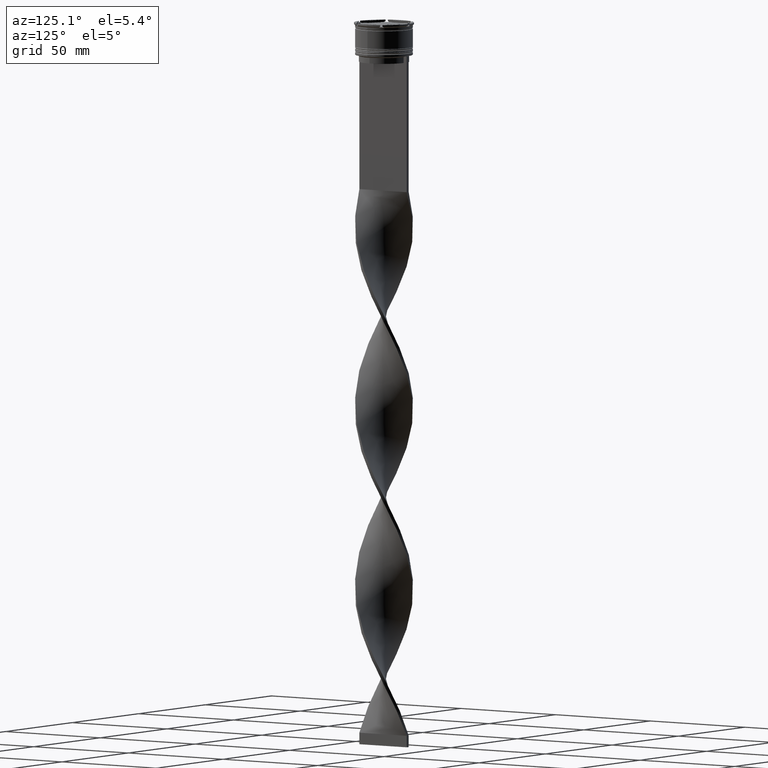
[diagram: clean part render]
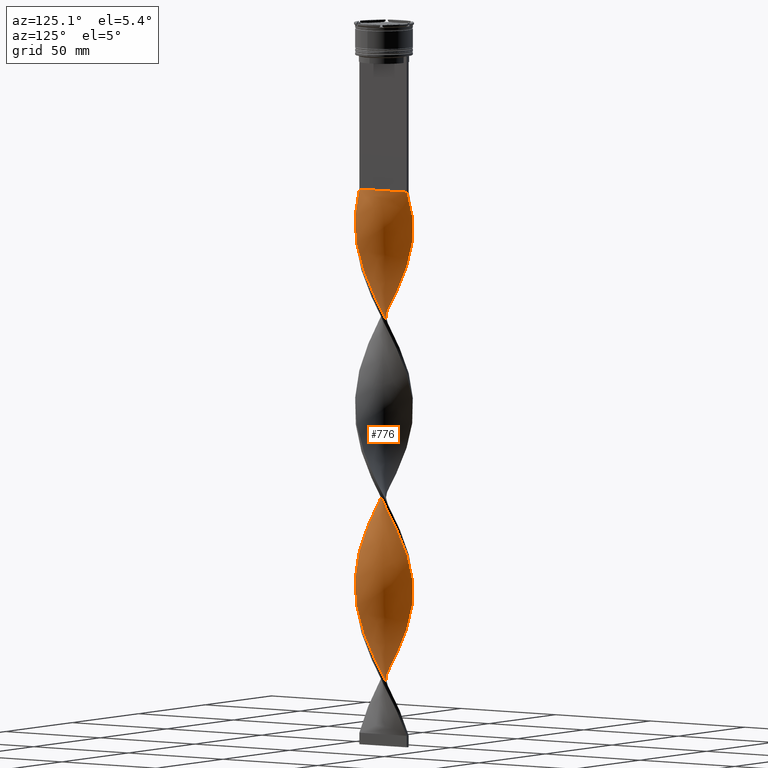
[diagram: same view with one face highlighted and labeled with its STEP entity id]
A machine part, auxiliary view. The second image highlights one B-rep face of the part: STEP entity #776.
In plain terms, the highlighted face is a freeform B-spline surface patch.
Its self-contained STEP definition (entity closure, byte-faithful):
#3 = CARTESIAN_POINT ( 'NONE',  ( -11.47807442715926030, -5.006626353603058632, -124.1333333333333400 ) ) ;
#5 = CARTESIAN_POINT ( 'NONE',  ( 10.79708867754993840, -6.343136139885612756, -179.1999999999999886 ) ) ;
#17 = CARTESIAN_POINT ( 'NONE',  ( 3.658622801590748264, -12.01658309743656083, -78.90000000000001990 ) ) ;
#18 = CARTESIAN_POINT ( 'NONE',  ( 1.733771335307731087, -12.44097371988153711, -232.3000000000000114 ) ) ;
#27 = CARTESIAN_POINT ( 'NONE',  ( 8.308504678941933008, -9.369164850721755755, -171.3333333333333428 ) ) ;
#30 = CARTESIAN_POINT ( 'NONE',  ( -0.7499999999999986677, 12.50000000000000000, -309.0000000000000000 ) ) ;
#43 = CARTESIAN_POINT ( 'NONE',  ( 11.08404438769758293, -5.909970402080499952, -98.56666666666669130 ) ) ;
#44 = CARTESIAN_POINT ( 'NONE',  ( 10.02305835011481605, -7.571135413668909742, -251.9666666666666970 ) ) ;
#49 = CARTESIAN_POINT ( 'NONE',  ( -7.192885447545556588, -10.29787303672002174, -137.9000000000000625 ) ) ;
#51 = CARTESIAN_POINT ( 'NONE',  ( 11.29630431837985505, -5.493386832225676031, -181.1666666666666856 ) ) ;
#66 = CARTESIAN_POINT ( 'NONE',  ( 11.29630431837985682, 5.493386832225668037, -122.1666666666666856 ) ) ;
#71 = CARTESIAN_POINT ( 'NONE',  ( -11.65644370790820794, 4.576004816908208817, -104.4666666666666828 ) ) ;
#73 = CARTESIAN_POINT ( 'NONE',  ( -5.493386832225669814, -11.29630431837985682, -141.8333333333333428 ) ) ;
#87 = CARTESIAN_POINT ( 'NONE',  ( -12.44097371988153711, -1.733771335307734640, -192.9666666666666970 ) ) ;
#93 = CARTESIAN_POINT ( 'NONE',  ( -9.671873490467488566, 7.954078399437126023, -253.9333333333333371 ) ) ;
#95 = CARTESIAN_POINT ( 'NONE',  ( -12.36783393232032680, -2.195557779805334508, -118.2333333333333485 ) ) ;
#111 = VECTOR ( 'NONE', #2568, 1000.000000000000000 ) ;
#113 = CARTESIAN_POINT ( 'NONE',  ( -10.79708867754994017, -6.343136139885609204, -202.8000000000000114 ) ) ;
#114 = CARTESIAN_POINT ( 'NONE',  ( 5.909970402080499063, 11.08404438769758293, -295.2333333333332916 ) ) ;
#120 = CARTESIAN_POINT ( 'NONE',  ( 5.493386832225676919, 11.29630431837985505, -220.5000000000000284 ) ) ;
#122 = CARTESIAN_POINT ( 'NONE',  ( -5.909970402080498175, 11.08404438769758293, -244.0999999999999943 ) ) ;
#135 = CARTESIAN_POINT ( 'NONE',  ( 7.571135413668912406, 10.02305835011481605, -133.9666666666666686 ) ) ;
#140 = CARTESIAN_POINT ( 'NONE',  ( -10.29787303672002174, 7.192885447545556588, -255.9000000000000909 ) ) ;
#142 =( BOUNDED_CURVE ( )  B_SPLINE_CURVE ( 2, ( #1722, #3073, #4491, #302, #2726, #1377, #598, #1310, #3417, #3053, #285, #2330, #4045, #3710, #1330, #1981, #4108, #2395, #1029, #3224, #2475, #1743, #4235, #95, #3203, #2430, #3861, #4150, #3906, #3480, #726, #3815, #3498, #3180, #1836, #73, #3136, #1119, #1464, #1075, #750, #686, #2092, #2859, #2522, #777, #2496, #1052, #2180, #387, #27, #707, #347, #2132, #5, #51, #365, #1787, #414, #1419, #1763, #1394, #2817, #3565, #3155, #1443, #2770, #435, #2114, #3517, #3841, #2453, #2790, #3880, #2838, #4170, #4195, #4214, #1096, #2157, #3544, #1812, #1535, #1926, #3973, #3947, #1236, #122, #3314, #4016, #819, #3272, #1558, #2884, #143, #482, #186, #1514, #503, #2202, #3657, #455, #2227, #3586, #2564, #4351, #4303, #2928, #1862, #3250, #846, #3292, #2907, #1584, #4284, #1907, #2950, #4262, #1887, #164, #2974 ),
 .UNSPECIFIED., .F., .T. ) 
 B_SPLINE_CURVE_WITH_KNOTS ( ( 3, 2, 2, 2, 2, 2, 2, 2, 2, 2, 2, 2, 2, 2, 2, 2, 2, 2, 2, 2, 2, 2, 2, 2, 2, 2, 2, 2, 2, 2, 2, 2, 2, 2, 2, 2, 2, 2, 2, 2, 2, 2, 2, 2, 2, 2, 2, 2, 2, 2, 2, 2, 2, 2, 2, 2, 2, 2, 2, 2, 3 ),
 ( 0.000000000000000000, 0.01250000000000000243, 0.02500000000000000486, 0.03749999999999999861, 0.05000000000000000971, 0.06250000000000000000, 0.07499999999999999722, 0.08749999999999998057, 0.1000000000000000194, 0.1125000000000000028, 0.1250000000000000000, 0.1375000000000000111, 0.1499999999999999944, 0.1625000000000000056, 0.1749999999999999611, 0.1875000000000000000, 0.2000000000000000389, 0.2124999999999999944, 0.2250000000000000056, 0.2374999999999999611, 0.2500000000000000000, 0.2625000000000000111, 0.2750000000000000222, 0.2874999999999999778, 0.2999999999999999889, 0.3125000000000000000, 0.3250000000000000111, 0.3375000000000000777, 0.3499999999999999223, 0.3624999999999999889, 0.3750000000000000000, 0.3875000000000000111, 0.4000000000000000777, 0.4124999999999999223, 0.4249999999999999889, 0.4375000000000000000, 0.4500000000000000111, 0.4625000000000000777, 0.4749999999999999223, 0.4874999999999999889, 0.5000000000000000000, 0.5124999999999999556, 0.5250000000000000222, 0.5374999999999999778, 0.5500000000000000444, 0.5625000000000000000, 0.5749999999999999556, 0.5875000000000000222, 0.5999999999999999778, 0.6125000000000000444, 0.6250000000000000000, 0.6374999999999999556, 0.6500000000000000222, 0.6624999999999999778, 0.6750000000000001554, 0.6875000000000000000, 0.6999999999999998446, 0.7125000000000000222, 0.7249999999999999778, 0.7375000000000001554, 0.7500000000000000000 ),
 .UNSPECIFIED. ) 
 CURVE ( )  GEOMETRIC_REPRESENTATION_ITEM ( )  RATIONAL_B_SPLINE_CURVE ( ( 1.000000000000000000, 0.9969173337331279638, 1.000000000000000000, 0.9969173337331279638, 1.000000000000000000, 0.9969173337331279638, 1.000000000000000000, 0.9969173337331279638, 1.000000000000000000, 0.9969173337331279638, 1.000000000000000000, 0.9969173337331279638, 1.000000000000000000, 0.9969173337331279638, 1.000000000000000000, 0.9969173337331279638, 1.000000000000000000, 0.9969173337331279638, 1.000000000000000000, 0.9969173337331279638, 1.000000000000000000, 0.9969173337331279638, 1.000000000000000000, 0.9969173337331279638, 1.000000000000000000, 0.9969173337331279638, 1.000000000000000000, 0.9969173337331279638, 1.000000000000000000, 0.9969173337331279638, 1.000000000000000000, 0.9969173337331279638, 1.000000000000000000, 0.9969173337331279638, 1.000000000000000000, 0.9969173337331279638, 1.000000000000000000, 0.9969173337331279638, 1.000000000000000000, 0.9969173337331279638, 1.000000000000000000, 0.9969173337331279638, 1.000000000000000000, 0.9969173337331279638, 1.000000000000000000, 0.9969173337331279638, 1.000000000000000000, 0.9969173337331279638, 1.000000000000000000, 0.9969173337331279638, 1.000000000000000000, 0.9969173337331279638, 1.000000000000000000, 0.9969173337331279638, 1.000000000000000000, 0.9969173337331279638, 1.000000000000000000, 0.9969173337331279638, 1.000000000000000000, 0.9969173337331279638, 1.000000000000000000, 0.9969173337331279638, 1.000000000000000000, 0.9969173337331279638, 1.000000000000000000, 0.9969173337331279638, 1.000000000000000000, 0.9969173337331279638, 1.000000000000000000, 0.9969173337331279638, 1.000000000000000000, 0.9969173337331279638, 1.000000000000000000, 0.9969173337331279638, 1.000000000000000000, 0.9969173337331279638, 1.000000000000000000, 0.9969173337331279638, 1.000000000000000000, 0.9969173337331279638, 1.000000000000000000, 0.9969173337331279638, 1.000000000000000000, 0.9969173337331279638, 1.000000000000000000, 0.9969173337331279638, 1.000000000000000000, 0.9969173337331279638, 1.000000000000000000, 0.9969173337331279638, 1.000000000000000000, 0.9969173337331279638, 1.000000000000000000, 0.9969173337331279638, 1.000000000000000000, 0.9969173337331279638, 1.000000000000000000, 0.9969173337331279638, 1.000000000000000000, 0.9969173337331279638, 1.000000000000000000, 0.9969173337331279638, 1.000000000000000000, 0.9969173337331279638, 1.000000000000000000, 0.9969173337331279638, 1.000000000000000000, 0.9969173337331279638, 1.000000000000000000, 0.9969173337331279638, 1.000000000000000000, 0.9969173337331279638, 1.000000000000000000, 0.9969173337331279638, 1.000000000000000000, 0.9969173337331279638, 1.000000000000000000, 0.9969173337331279638, 1.000000000000000000, 0.9969173337331279638, 1.000000000000000000 ) ) 
 REPRESENTATION_ITEM ( '' )  );
#143 = CARTESIAN_POINT ( 'NONE',  ( -10.79708867754993840, 6.343136139885611868, -257.8666666666666742 ) ) ;
#157 = CARTESIAN_POINT ( 'NONE',  ( 6.740552907874705291, 10.55355136890619860, -293.2666666666666515 ) ) ;
#158 = CARTESIAN_POINT ( 'NONE',  ( 7.571135413668911518, 10.02305835011481605, -291.3000000000000682 ) ) ;
#162 = CARTESIAN_POINT ( 'NONE',  ( -11.65644370790820794, 4.576004816908208817, -261.7999999999999545 ) ) ;
#164 = CARTESIAN_POINT ( 'NONE',  ( -1.733771335307732864, -12.44097371988153711, -307.0333333333333030 ) ) ;
#184 = CARTESIAN_POINT ( 'NONE',  ( -9.045873944214958939, 8.715271351328699012, -251.9666666666666970 ) ) ;
#186 = CARTESIAN_POINT ( 'NONE',  ( -11.65644370790820794, 4.576004816908208817, -261.7999999999999545 ) ) ;
#206 = CARTESIAN_POINT ( 'NONE',  ( 12.22877840865904986, 2.696197068449238898, -116.2666666666666657 ) ) ;
#226 = CARTESIAN_POINT ( 'NONE',  ( 3.658622801590748708, -12.01658309743656083, -78.90000000000003411 ) ) ;
#251 = CARTESIAN_POINT ( 'NONE',  ( 8.308504678941934785, 9.369164850721753979, -132.0000000000000000 ) ) ;
#269 = CARTESIAN_POINT ( 'NONE',  ( -0.2337713353077390810, -12.55902628011846822, -228.3666666666666742 ) ) ;
#276 = CARTESIAN_POINT ( 'NONE',  ( -7.954078399437126912, -9.671873490467486789, -293.2666666666666515 ) ) ;
#285 = CARTESIAN_POINT ( 'NONE',  ( -8.308504678941934785, 9.369164850721755755, -92.66666666666667140 ) ) ;
#296 = CARTESIAN_POINT ( 'NONE',  ( 4.576004816908207928, -11.65644370790820794, -80.86666666666667425 ) ) ;
#302 = CARTESIAN_POINT ( 'NONE',  ( -2.195557779805334508, 12.36783393232032502, -78.90000000000001990 ) ) ;
#307 = CARTESIAN_POINT ( 'NONE',  ( -1.214664557556535351, -12.46343010621939307, -226.3999999999999773 ) ) ;
#315 = CARTESIAN_POINT ( 'NONE',  ( -11.87210446662093410, 4.103282305125628859, -181.1666666666667140 ) ) ;
#321 = CARTESIAN_POINT ( 'NONE',  ( -2.195557779805334508, 12.36783393232032502, -78.90000000000003411 ) ) ;
#340 = CARTESIAN_POINT ( 'NONE',  ( -9.369164850721753979, 8.308504678941934785, -171.3333333333333428 ) ) ;
#347 = CARTESIAN_POINT ( 'NONE',  ( 9.671873490467486789, -7.954078399437126912, -175.2666666666666799 ) ) ;
#358 = CARTESIAN_POINT ( 'NONE',  ( 1.733771335307731087, -12.44097371988153711, -74.96666666666668277 ) ) ;
#359 = CARTESIAN_POINT ( 'NONE',  ( -9.045873944214957163, -8.715271351328702565, -208.7000000000000171 ) ) ;
#363 = CARTESIAN_POINT ( 'NONE',  ( -9.369164850721755755, -8.308504678941933008, -132.0000000000000000 ) ) ;
#365 = CARTESIAN_POINT ( 'NONE',  ( 11.65644370790820794, -4.576004816908210593, -183.1333333333333258 ) ) ;
#378 = CARTESIAN_POINT ( 'NONE',  ( 0.7500000000000002220, -12.50000000000000000, -230.3333333333333428 ) ) ;
#384 = CARTESIAN_POINT ( 'NONE',  ( -7.571135413668909742, 10.02305835011481605, -90.70000000000001705 ) ) ;
#387 = CARTESIAN_POINT ( 'NONE',  ( 7.571135413668909742, -10.02305835011481783, -169.3666666666667027 ) ) ;
#392 = B_SPLINE_CURVE_WITH_KNOTS ( 'NONE', 3,
 ( #2754, #2478, #4135, #30 ),
 .UNSPECIFIED., .F., .F.,
 ( 4, 4 ),
 ( 0.000000000000000000, 1.000000000000000000 ),
 .UNSPECIFIED. ) ;
#406 = CARTESIAN_POINT ( 'NONE',  ( -2.696197068449238010, 12.22877840865904986, -155.6000000000000227 ) ) ;
#407 = CARTESIAN_POINT ( 'NONE',  ( 4.576004816908207928, -11.65644370790820794, -238.1999999999999886 ) ) ;
#412 = CARTESIAN_POINT ( 'NONE',  ( 0.7500000000000002220, 12.50000000000000000, -73.00000000000001421 ) ) ;
#414 = CARTESIAN_POINT ( 'NONE',  ( 12.22877840865904808, -2.696197068449241119, -187.0666666666666629 ) ) ;
#428 = CARTESIAN_POINT ( 'NONE',  ( 3.149420042465479241, 12.11996919947063134, -143.7999999999999829 ) ) ;
#433 = CARTESIAN_POINT ( 'NONE',  ( 12.22877840865904808, -2.696197068449241119, -187.0666666666666629 ) ) ;
#435 = CARTESIAN_POINT ( 'NONE',  ( 11.08404438769758649, 5.909970402080491958, -204.7666666666666799 ) ) ;
#436 = ORIENTED_EDGE ( 'NONE', *, *, #2326, .F. ) ;
#448 = CARTESIAN_POINT ( 'NONE',  ( -12.46343010621939307, 1.214664557556534463, -187.0666666666666629 ) ) ;
#453 = CARTESIAN_POINT ( 'NONE',  ( 11.65644370790820794, -4.576004816908210593, -183.1333333333333258 ) ) ;
#455 = CARTESIAN_POINT ( 'NONE',  ( -12.55902628011846645, -0.2337713353077295608, -271.6333333333332689 ) ) ;
#472 = CARTESIAN_POINT ( 'NONE',  ( 5.006626353603060409, 11.47807442715925852, -139.8666666666666742 ) ) ;
#480 = CARTESIAN_POINT ( 'NONE',  ( 6.740552907874702626, -10.55355136890619860, -167.4000000000000057 ) ) ;
#482 = CARTESIAN_POINT ( 'NONE',  ( -11.29630431837985682, 5.493386832225669814, -259.8333333333334281 ) ) ;
#495 = CARTESIAN_POINT ( 'NONE',  ( -10.55355136890619860, 6.740552907874705291, -175.2666666666666799 ) ) ;
#496 = CARTESIAN_POINT ( 'NONE',  ( 2.195557779805335397, 12.36783393232032502, -303.0999999999999659 ) ) ;
#501 = CARTESIAN_POINT ( 'NONE',  ( 3.658622801590746043, 12.01658309743656261, -224.4333333333333655 ) ) ;
#503 = CARTESIAN_POINT ( 'NONE',  ( -12.22877840865904986, 2.696197068449240231, -265.7333333333333485 ) ) ;
#512 = VERTEX_POINT ( 'NONE', #2684 ) ;
#516 = CARTESIAN_POINT ( 'NONE',  ( 3.149420042465479241, 12.11996919947063134, -301.1333333333333258 ) ) ;
#518 = CARTESIAN_POINT ( 'NONE',  ( -0.2337713353077304212, 12.55902628011846645, -232.3000000000000114 ) ) ;
#544 = CARTESIAN_POINT ( 'NONE',  ( 1.214664557556534019, 12.46343010621939307, -147.7333333333333201 ) ) ;
#567 = CARTESIAN_POINT ( 'NONE',  ( 3.149420042465479241, 12.11996919947063134, -143.7999999999999829 ) ) ;
#590 = CARTESIAN_POINT ( 'NONE',  ( 9.671873490467490342, 7.954078399437124247, -128.0666666666666629 ) ) ;
#598 = CARTESIAN_POINT ( 'NONE',  ( -5.006626353603058632, 11.47807442715926030, -84.80000000000001137 ) ) ;
#603 = CARTESIAN_POINT ( 'NONE',  ( 0.7500000000000002220, -12.50000000000000000, -230.3333333333333428 ) ) ;
#612 = CARTESIAN_POINT ( 'NONE',  ( -0.7499999999999986677, 12.50000000000000000, -309.0000000000000000 ) ) ;
#613 = CARTESIAN_POINT ( 'NONE',  ( -12.36783393232032680, -2.195557779805334508, -275.5666666666666060 ) ) ;
#637 = CARTESIAN_POINT ( 'NONE',  ( 12.50000000000000000, 0.7499999999999994449, -112.3333333333333428 ) ) ;
#650 = CARTESIAN_POINT ( 'NONE',  ( 11.87210446662093588, -4.103282305125623530, -259.8333333333334281 ) ) ;
#656 = CARTESIAN_POINT ( 'NONE',  ( -10.55355136890619860, 6.740552907874705291, -175.2666666666666799 ) ) ;
#678 = CARTESIAN_POINT ( 'NONE',  ( -12.11996919947063134, 3.149420042465479241, -183.1333333333333258 ) ) ;
#684 = CARTESIAN_POINT ( 'NONE',  ( -12.46343010621939484, -1.214664557556531577, -116.2666666666666657 ) ) ;
#686 = CARTESIAN_POINT ( 'NONE',  ( 0.2337713353077288947, -12.55902628011846645, -153.6333333333333826 ) ) ;
#701 = CARTESIAN_POINT ( 'NONE',  ( -11.65644370790820972, -4.576004816908206152, -198.8666666666666742 ) ) ;
#707 = CARTESIAN_POINT ( 'NONE',  ( 9.045873944214955387, -8.715271351328706118, -173.3000000000000114 ) ) ;
#718 = CARTESIAN_POINT ( 'NONE',  ( 8.715271351328699012, -9.045873944214958939, -90.70000000000001705 ) ) ;
#720 = CARTESIAN_POINT ( 'NONE',  ( 12.22877840865904986, 2.696197068449238898, -273.5999999999999659 ) ) ;
#726 = CARTESIAN_POINT ( 'NONE',  ( -9.369164850721755755, -8.308504678941933008, -132.0000000000000000 ) ) ;
#740 = CARTESIAN_POINT ( 'NONE',  ( 1.214664557556534019, 12.46343010621939307, -147.7333333333333201 ) ) ;
#741 = CARTESIAN_POINT ( 'NONE',  ( 11.29630431837985682, 5.493386832225668037, -279.4999999999999432 ) ) ;
#750 = CARTESIAN_POINT ( 'NONE',  ( -0.7500000000000017764, -12.50000000000000000, -151.6666666666666856 ) ) ;
#768 = CARTESIAN_POINT ( 'NONE',  ( -11.47807442715925852, 5.006626353603060409, -179.1999999999999886 ) ) ;
#774 = CARTESIAN_POINT ( 'NONE',  ( 0.2337713353077288947, -12.55902628011846645, -153.6333333333333826 ) ) ;
#776 = ADVANCED_FACE ( 'NONE', ( #1375 ), #1226, .T. ) ;
#777 = CARTESIAN_POINT ( 'NONE',  ( 4.103282305125619978, -11.87210446662093766, -161.5000000000000000 ) ) ;
#790 = CARTESIAN_POINT ( 'NONE',  ( 4.103282305125623530, 11.87210446662093588, -141.8333333333333428 ) ) ;
#795 = CARTESIAN_POINT ( 'NONE',  ( 6.343136139885613645, 10.79708867754993840, -218.5333333333333314 ) ) ;
#812 = CARTESIAN_POINT ( 'NONE',  ( -6.740552907874707067, -10.55355136890619860, -214.5999999999999943 ) ) ;
#817 = CARTESIAN_POINT ( 'NONE',  ( 12.46343010621939484, 1.214664557556529800, -194.9333333333333371 ) ) ;
#819 = CARTESIAN_POINT ( 'NONE',  ( -8.308504678941934785, 9.369164850721755755, -250.0000000000000000 ) ) ;
#837 = CARTESIAN_POINT ( 'NONE',  ( 12.22877840865904986, 2.696197068449238898, -116.2666666666666657 ) ) ;
#844 = CARTESIAN_POINT ( 'NONE',  ( -0.7500000000000017764, -12.50000000000000000, -151.6666666666666856 ) ) ;
#846 = CARTESIAN_POINT ( 'NONE',  ( -9.369164850721755755, -8.308504678941933008, -289.3333333333333144 ) ) ;
#860 = CARTESIAN_POINT ( 'NONE',  ( -5.006626353603061297, -11.47807442715925852, -218.5333333333333314 ) ) ;
#866 = CARTESIAN_POINT ( 'NONE',  ( 11.87210446662093410, 4.103282305125625307, -200.8333333333333428 ) ) ;
#885 = CARTESIAN_POINT ( 'NONE',  ( 10.29787303672002530, 7.192885447545554811, -126.1000000000000369 ) ) ;
#913 = CARTESIAN_POINT ( 'NONE',  ( -4.576004816908207040, 11.65644370790820972, -159.5333333333333314 ) ) ;
#936 = CARTESIAN_POINT ( 'NONE',  ( -12.46343010621939484, -1.214664557556531577, -273.5999999999999659 ) ) ;
#957 = CARTESIAN_POINT ( 'NONE',  ( -2.696197068449238010, 12.22877840865904986, -155.6000000000000227 ) ) ;
#980 = CARTESIAN_POINT ( 'NONE',  ( 11.47807442715925852, -5.006626353603059520, -100.5333333333333314 ) ) ;
#996 = CARTESIAN_POINT ( 'NONE',  ( 7.954078399437126023, -9.671873490467488566, -246.0666666666666629 ) ) ;
#1002 = CARTESIAN_POINT ( 'NONE',  ( 9.671873490467490342, 7.954078399437124247, -285.3999999999999773 ) ) ;
#1015 = CARTESIAN_POINT ( 'NONE',  ( 10.02305835011481605, -7.571135413668910630, -251.9666666666666686 ) ) ;
#1021 = CARTESIAN_POINT ( 'NONE',  ( -5.493386832225668037, 11.29630431837985860, -161.5000000000000000 ) ) ;
#1026 = CARTESIAN_POINT ( 'NONE',  ( -9.045873944214958939, 8.715271351328699012, -94.63333333333335418 ) ) ;
#1029 = CARTESIAN_POINT ( 'NONE',  ( -12.22877840865904986, 2.696197068449240231, -108.3999999999999915 ) ) ;
#1044 = CARTESIAN_POINT ( 'NONE',  ( 5.493386832225668925, -11.29630431837985682, -240.1666666666667140 ) ) ;
#1050 = CARTESIAN_POINT ( 'NONE',  ( -9.671873490467488566, 7.954078399437126023, -96.60000000000000853 ) ) ;
#1052 = CARTESIAN_POINT ( 'NONE',  ( 5.909970402080496399, -11.08404438769758293, -165.4333333333333371 ) ) ;
#1069 = CARTESIAN_POINT ( 'NONE',  ( 12.11996919947063134, -3.149420042465478353, -261.7999999999999545 ) ) ;
#1073 = CARTESIAN_POINT ( 'NONE',  ( -12.55902628011846645, -0.2337713353077295608, -114.3000000000000398 ) ) ;
#1075 = CARTESIAN_POINT ( 'NONE',  ( -1.733771335307732864, -12.44097371988153711, -149.7000000000000171 ) ) ;
#1087 = CARTESIAN_POINT ( 'NONE',  ( 10.29787303672002352, 7.192885447545553923, -126.1000000000000227 ) ) ;
#1089 = CARTESIAN_POINT ( 'NONE',  ( -6.343136139885609204, 10.79708867754994017, -163.4666666666666401 ) ) ;
#1096 = CARTESIAN_POINT ( 'NONE',  ( 2.696197068449242007, 12.22877840865904808, -226.3999999999999773 ) ) ;
#1110 = CARTESIAN_POINT ( 'NONE',  ( 2.195557779805335841, 12.36783393232032502, -145.7666666666666515 ) ) ;
#1116 = CARTESIAN_POINT ( 'NONE',  ( -0.2337713353077304212, 12.55902628011846645, -74.96666666666668277 ) ) ;
#1119 = CARTESIAN_POINT ( 'NONE',  ( -3.658622801590750040, -12.01658309743656083, -145.7666666666666515 ) ) ;
#1135 = CARTESIAN_POINT ( 'NONE',  ( 12.11996919947063134, -3.149420042465478353, -104.4666666666666828 ) ) ;
#1141 = CARTESIAN_POINT ( 'NONE',  ( -12.44097371988153711, 1.733771335307731976, -267.6999999999999318 ) ) ;
#1157 = CARTESIAN_POINT ( 'NONE',  ( 12.44097371988153711, 1.733771335307730199, -114.3000000000000256 ) ) ;
#1158 = CARTESIAN_POINT ( 'NONE',  ( 0.2337713353077321421, 12.55902628011846645, -307.0333333333333030 ) ) ;
#1162 = CARTESIAN_POINT ( 'NONE',  ( -12.50000000000000000, 0.7500000000000009992, -269.6666666666666856 ) ) ;
#1177 = CARTESIAN_POINT ( 'NONE',  ( 12.01658309743656261, 3.658622801590747819, -118.2333333333333485 ) ) ;
#1183 = CARTESIAN_POINT ( 'NONE',  ( 12.44097371988153533, -1.733771335307738859, -189.0333333333333314 ) ) ;
#1191 = LINE ( 'NONE', #3912, #111 ) ;
#1205 = CARTESIAN_POINT ( 'NONE',  ( 12.50000000000000000, 0.7499999999999994449, -269.6666666666666856 ) ) ;
#1212 = CARTESIAN_POINT ( 'NONE',  ( 3.149420042465475689, -12.11996919947063311, -159.5333333333333314 ) ) ;
#1226 =( BOUNDED_SURFACE ( )  B_SPLINE_SURFACE ( 1, 2, ( 
 ( #412, #1116, #1810, #321, #1761, #2065, #3201, #4148, #3115, #384, #2473, #1026, #1050, #1417, #2428, #3134, #71, #4193, #4489, #3812, #3839, #1073, #684, #2090, #1784, #3478, #3, #2787, #2112, #1462, #363, #2130, #3515, #49, #1441, #2836, #2857, #4233, #2541, #2926, #844, #774, #4281, #4301, #1212, #1859, #1582, #3248, #480, #3584, #2948, #1532, #3995, #1234, #2972, #2224, #453, #1512, #433, #1183, #3925, #2611, #817, #1885, #3904, #866, #3634, #4328, #3609, #1834, #2271, #2251, #2585, #3971, #795, #120, #3655, #501, #1905, #2200, #2562, #518, #3289, #3945, #2882, #1924, #4349, #3311, #2178, #3270, #3563, #184, #93, #140, #3222, #2905, #162, #1485, #4260, #1141, #1162, #1556, #936, #613, #1302, #2697, #1668, #2630, #1620, #1995, #1322, #3085, #276, #4370, #3357, #2386, #3015, #4390, #2717, #2320, #1950 ),
 ( #3427, #2020, #2993, #226, #296, #3337, #4014, #3064, #2677, #4435, #1278, #3381, #4099, #4457, #980, #1252, #4058, #3770, #2341, #3722, #637, #3701, #206, #3744, #2650, #1601, #2041, #885, #590, #1691, #251, #3043, #2291, #3678, #1972, #1646, #567, #4415, #544, #2361, #4078, #4033, #957, #3408, #913, #1021, #1089, #3834, #3197, #2405, #340, #3492, #656, #2061, #2469, #315, #678, #3447, #2423, #4208, #4163, #4503, #1715, #3110, #701, #3148, #4485, #1779, #1370, #359, #2809, #2742, #1737, #1756, #3172, #3808, #3534, #2084, #2445, #3475, #378, #18, #1437, #1346, #407, #1044, #3129, #1388, #3788, #1410, #2763, #44, #2782, #2107, #4124, #2832, #1069, #2489, #4188, #4143, #3873, #3854, #720, #2125, #3511, #741, #2148, #1806, #1002, #1480, #3242, #158, #2580, #114, #3559, #1551, #516, #496, #2852, #1158, #1458 ) ),
 .UNSPECIFIED., .F., .F., .F. ) 
 B_SPLINE_SURFACE_WITH_KNOTS ( ( 2, 2 ),
 ( 3, 2, 2, 2, 2, 2, 2, 2, 2, 2, 2, 2, 2, 2, 2, 2, 2, 2, 2, 2, 2, 2, 2, 2, 2, 2, 2, 2, 2, 2, 2, 2, 2, 2, 2, 2, 2, 2, 2, 2, 2, 2, 2, 2, 2, 2, 2, 2, 2, 2, 2, 2, 2, 2, 2, 2, 2, 2, 2, 2, 3 ),
 ( 0.000000000000000000, 1.000000000000000000 ),
 ( 0.000000000000000000, 0.01250000000000000069, 0.02500000000000000139, 0.03749999999999999861, 0.05000000000000000278, 0.06250000000000000000, 0.07499999999999999722, 0.08749999999999999445, 0.1000000000000000056, 0.1125000000000000028, 0.1250000000000000000, 0.1375000000000000111, 0.1499999999999999944, 0.1625000000000000056, 0.1749999999999999889, 0.1875000000000000000, 0.2000000000000000111, 0.2124999999999999944, 0.2250000000000000056, 0.2374999999999999889, 0.2500000000000000000, 0.2625000000000000111, 0.2750000000000000222, 0.2874999999999999778, 0.2999999999999999889, 0.3125000000000000000, 0.3250000000000000111, 0.3375000000000000222, 0.3499999999999999778, 0.3624999999999999889, 0.3750000000000000000, 0.3875000000000000111, 0.4000000000000000222, 0.4124999999999999778, 0.4249999999999999889, 0.4375000000000000000, 0.4500000000000000111, 0.4625000000000000222, 0.4749999999999999778, 0.4874999999999999889, 0.5000000000000000000, 0.5124999999999999556, 0.5250000000000000222, 0.5374999999999999778, 0.5500000000000000444, 0.5625000000000000000, 0.5749999999999999556, 0.5875000000000000222, 0.5999999999999999778, 0.6125000000000000444, 0.6250000000000000000, 0.6374999999999999556, 0.6500000000000000222, 0.6624999999999999778, 0.6750000000000000444, 0.6875000000000000000, 0.6999999999999999556, 0.7125000000000000222, 0.7249999999999999778, 0.7375000000000000444, 0.7500000000000000000 ),
 .UNSPECIFIED. ) 
 GEOMETRIC_REPRESENTATION_ITEM ( )  RATIONAL_B_SPLINE_SURFACE ( (
 ( 1.000000000000000000, 0.9969173337331279638, 1.000000000000000000, 0.9969173337331279638, 1.000000000000000000, 0.9969173337331279638, 1.000000000000000000, 0.9969173337331279638, 1.000000000000000000, 0.9969173337331279638, 1.000000000000000000, 0.9969173337331279638, 1.000000000000000000, 0.9969173337331279638, 1.000000000000000000, 0.9969173337331279638, 1.000000000000000000, 0.9969173337331279638, 1.000000000000000000, 0.9969173337331279638, 1.000000000000000000, 0.9969173337331279638, 1.000000000000000000, 0.9969173337331279638, 1.000000000000000000, 0.9969173337331279638, 1.000000000000000000, 0.9969173337331279638, 1.000000000000000000, 0.9969173337331279638, 1.000000000000000000, 0.9969173337331279638, 1.000000000000000000, 0.9969173337331279638, 1.000000000000000000, 0.9969173337331279638, 1.000000000000000000, 0.9969173337331279638, 1.000000000000000000, 0.9969173337331279638, 1.000000000000000000, 0.9969173337331279638, 1.000000000000000000, 0.9969173337331279638, 1.000000000000000000, 0.9969173337331279638, 1.000000000000000000, 0.9969173337331279638, 1.000000000000000000, 0.9969173337331279638, 1.000000000000000000, 0.9969173337331279638, 1.000000000000000000, 0.9969173337331279638, 1.000000000000000000, 0.9969173337331279638, 1.000000000000000000, 0.9969173337331279638, 1.000000000000000000, 0.9969173337331279638, 1.000000000000000000, 0.9969173337331279638, 1.000000000000000000, 0.9969173337331279638, 1.000000000000000000, 0.9969173337331279638, 1.000000000000000000, 0.9969173337331279638, 1.000000000000000000, 0.9969173337331279638, 1.000000000000000000, 0.9969173337331279638, 1.000000000000000000, 0.9969173337331279638, 1.000000000000000000, 0.9969173337331279638, 1.000000000000000000, 0.9969173337331279638, 1.000000000000000000, 0.9969173337331279638, 1.000000000000000000, 0.9969173337331279638, 1.000000000000000000, 0.9969173337331279638, 1.000000000000000000, 0.9969173337331279638, 1.000000000000000000, 0.9969173337331279638, 1.000000000000000000, 0.9969173337331279638, 1.000000000000000000, 0.9969173337331279638, 1.000000000000000000, 0.9969173337331279638, 1.000000000000000000, 0.9969173337331279638, 1.000000000000000000, 0.9969173337331279638, 1.000000000000000000, 0.9969173337331279638, 1.000000000000000000, 0.9969173337331279638, 1.000000000000000000, 0.9969173337331279638, 1.000000000000000000, 0.9969173337331279638, 1.000000000000000000, 0.9969173337331279638, 1.000000000000000000, 0.9969173337331279638, 1.000000000000000000, 0.9969173337331279638, 1.000000000000000000, 0.9969173337331279638, 1.000000000000000000, 0.9969173337331279638, 1.000000000000000000, 0.9969173337331279638, 1.000000000000000000, 0.9969173337331279638, 1.000000000000000000),
 ( 1.000000000000000000, 0.9969173337331279638, 1.000000000000000000, 0.9969173337331279638, 1.000000000000000000, 0.9969173337331279638, 1.000000000000000000, 0.9969173337331279638, 1.000000000000000000, 0.9969173337331279638, 1.000000000000000000, 0.9969173337331279638, 1.000000000000000000, 0.9969173337331279638, 1.000000000000000000, 0.9969173337331279638, 1.000000000000000000, 0.9969173337331279638, 1.000000000000000000, 0.9969173337331279638, 1.000000000000000000, 0.9969173337331279638, 1.000000000000000000, 0.9969173337331279638, 1.000000000000000000, 0.9969173337331279638, 1.000000000000000000, 0.9969173337331279638, 1.000000000000000000, 0.9969173337331279638, 1.000000000000000000, 0.9969173337331279638, 1.000000000000000000, 0.9969173337331279638, 1.000000000000000000, 0.9969173337331279638, 1.000000000000000000, 0.9969173337331279638, 1.000000000000000000, 0.9969173337331279638, 1.000000000000000000, 0.9969173337331279638, 1.000000000000000000, 0.9969173337331279638, 1.000000000000000000, 0.9969173337331279638, 1.000000000000000000, 0.9969173337331279638, 1.000000000000000000, 0.9969173337331279638, 1.000000000000000000, 0.9969173337331279638, 1.000000000000000000, 0.9969173337331279638, 1.000000000000000000, 0.9969173337331279638, 1.000000000000000000, 0.9969173337331279638, 1.000000000000000000, 0.9969173337331279638, 1.000000000000000000, 0.9969173337331279638, 1.000000000000000000, 0.9969173337331279638, 1.000000000000000000, 0.9969173337331279638, 1.000000000000000000, 0.9969173337331279638, 1.000000000000000000, 0.9969173337331279638, 1.000000000000000000, 0.9969173337331279638, 1.000000000000000000, 0.9969173337331279638, 1.000000000000000000, 0.9969173337331279638, 1.000000000000000000, 0.9969173337331279638, 1.000000000000000000, 0.9969173337331279638, 1.000000000000000000, 0.9969173337331279638, 1.000000000000000000, 0.9969173337331279638, 1.000000000000000000, 0.9969173337331279638, 1.000000000000000000, 0.9969173337331279638, 1.000000000000000000, 0.9969173337331279638, 1.000000000000000000, 0.9969173337331279638, 1.000000000000000000, 0.9969173337331279638, 1.000000000000000000, 0.9969173337331279638, 1.000000000000000000, 0.9969173337331279638, 1.000000000000000000, 0.9969173337331279638, 1.000000000000000000, 0.9969173337331279638, 1.000000000000000000, 0.9969173337331279638, 1.000000000000000000, 0.9969173337331279638, 1.000000000000000000, 0.9969173337331279638, 1.000000000000000000, 0.9969173337331279638, 1.000000000000000000, 0.9969173337331279638, 1.000000000000000000, 0.9969173337331279638, 1.000000000000000000, 0.9969173337331279638, 1.000000000000000000, 0.9969173337331279638, 1.000000000000000000, 0.9969173337331279638, 1.000000000000000000) ) ) 
 REPRESENTATION_ITEM ( '' )  SURFACE ( )  );
#1234 = CARTESIAN_POINT ( 'NONE',  ( 10.29787303672002707, -7.192885447545552147, -177.2333333333333485 ) ) ;
#1236 = CARTESIAN_POINT ( 'NONE',  ( -5.006626353603058632, 11.47807442715926030, -242.1333333333333258 ) ) ;
#1252 = CARTESIAN_POINT ( 'NONE',  ( 11.87210446662093588, -4.103282305125623530, -102.5000000000000000 ) ) ;
#1278 = CARTESIAN_POINT ( 'NONE',  ( 9.369164850721755755, -8.308504678941934785, -92.66666666666667140 ) ) ;
#1289 = EDGE_CURVE ( 'NONE', #512, #2647, #142, .T. ) ;
#1295 = CARTESIAN_POINT ( 'NONE',  ( -4.103282305125630636, -11.87210446662093410, -220.5000000000000284 ) ) ;
#1302 = CARTESIAN_POINT ( 'NONE',  ( -12.11996919947063311, -3.149420042465476577, -277.5333333333333030 ) ) ;
#1310 = CARTESIAN_POINT ( 'NONE',  ( -5.909970402080498175, 11.08404438769758293, -86.76666666666666572 ) ) ;
#1316 = CARTESIAN_POINT ( 'NONE',  ( 7.571135413668912406, 10.02305835011481605, -291.3000000000000682 ) ) ;
#1322 = CARTESIAN_POINT ( 'NONE',  ( -9.369164850721755755, -8.308504678941933008, -289.3333333333333144 ) ) ;
#1330 = CARTESIAN_POINT ( 'NONE',  ( -10.79708867754993840, 6.343136139885611868, -100.5333333333333314 ) ) ;
#1336 = CARTESIAN_POINT ( 'NONE',  ( 4.576004816908207928, -11.65644370790820794, -238.1999999999999886 ) ) ;
#1345 = CARTESIAN_POINT ( 'NONE',  ( 4.576004816908207928, -11.65644370790820794, -80.86666666666667425 ) ) ;
#1346 = CARTESIAN_POINT ( 'NONE',  ( 3.658622801590748708, -12.01658309743656083, -236.2333333333333769 ) ) ;
#1362 = CARTESIAN_POINT ( 'NONE',  ( 1.214664557556534019, 12.46343010621939307, -305.0666666666666629 ) ) ;
#1370 = CARTESIAN_POINT ( 'NONE',  ( -9.671873490467490342, -7.954078399437122471, -206.7333333333333201 ) ) ;
#1375 = FACE_OUTER_BOUND ( 'NONE', #4073, .T. ) ;
#1377 = CARTESIAN_POINT ( 'NONE',  ( -4.103282305125622642, 11.87210446662093588, -82.83333333333335702 ) ) ;
#1388 = CARTESIAN_POINT ( 'NONE',  ( 7.192885447545554811, -10.29787303672002530, -244.0999999999999659 ) ) ;
#1394 = CARTESIAN_POINT ( 'NONE',  ( 12.55902628011846645, 0.2337713353077338907, -192.9666666666666970 ) ) ;
#1410 = CARTESIAN_POINT ( 'NONE',  ( 8.715271351328699012, -9.045873944214958939, -248.0333333333333314 ) ) ;
#1417 = CARTESIAN_POINT ( 'NONE',  ( -10.29787303672002174, 7.192885447545556588, -98.56666666666669130 ) ) ;
#1419 = CARTESIAN_POINT ( 'NONE',  ( 12.44097371988153533, -1.733771335307738859, -189.0333333333333314 ) ) ;
#1436 = CARTESIAN_POINT ( 'NONE',  ( 10.02305835011481605, -7.571135413668910630, -94.63333333333335418 ) ) ;
#1437 = CARTESIAN_POINT ( 'NONE',  ( 2.696197068449239787, -12.22877840865904986, -234.2666666666666515 ) ) ;
#1441 = CARTESIAN_POINT ( 'NONE',  ( -6.343136139885612756, -10.79708867754993840, -139.8666666666666742 ) ) ;
#1443 = CARTESIAN_POINT ( 'NONE',  ( 11.87210446662093410, 4.103282305125625307, -200.8333333333333428 ) ) ;
#1457 = CARTESIAN_POINT ( 'NONE',  ( 12.55902628011846645, -0.2337713353077312817, -110.3666666666666742 ) ) ;
#1458 = CARTESIAN_POINT ( 'NONE',  ( -0.7499999999999986677, 12.50000000000000000, -309.0000000000000000 ) ) ;
#1462 = CARTESIAN_POINT ( 'NONE',  ( -10.02305835011481605, -7.571135413668909742, -130.0333333333333314 ) ) ;
#1464 = CARTESIAN_POINT ( 'NONE',  ( -2.696197068449241119, -12.22877840865904808, -147.7333333333333201 ) ) ;
#1478 = CARTESIAN_POINT ( 'NONE',  ( -12.01658309743656439, -3.658622801590741158, -196.9000000000000057 ) ) ;
#1480 = CARTESIAN_POINT ( 'NONE',  ( 9.045873944214958939, 8.715271351328699012, -287.3666666666667311 ) ) ;
#1485 = CARTESIAN_POINT ( 'NONE',  ( -12.01658309743656083, 3.658622801590749596, -263.7666666666667652 ) ) ;
#1506 = CARTESIAN_POINT ( 'NONE',  ( -9.045873944214957163, -8.715271351328702565, -208.7000000000000171 ) ) ;
#1512 = CARTESIAN_POINT ( 'NONE',  ( 12.01658309743656261, -3.658622801590745155, -185.0999999999999659 ) ) ;
#1514 = CARTESIAN_POINT ( 'NONE',  ( -12.01658309743656083, 3.658622801590749152, -263.7666666666667084 ) ) ;
#1528 = CARTESIAN_POINT ( 'NONE',  ( -11.08404438769758471, 5.909970402080495511, -177.2333333333333485 ) ) ;
#1532 = CARTESIAN_POINT ( 'NONE',  ( 9.045873944214955387, -8.715271351328706118, -173.3000000000000114 ) ) ;
#1535 = CARTESIAN_POINT ( 'NONE',  ( -1.214664557556532465, 12.46343010621939484, -234.2666666666666515 ) ) ;
#1539 = CARTESIAN_POINT ( 'NONE',  ( -0.7500000000000017764, -12.50000000000000000, -309.0000000000000000 ) ) ;
#1551 = CARTESIAN_POINT ( 'NONE',  ( 4.103282305125623530, 11.87210446662093588, -299.1666666666666856 ) ) ;
#1556 = CARTESIAN_POINT ( 'NONE',  ( -12.55902628011846645, -0.2337713353077295608, -271.6333333333332689 ) ) ;
#1558 = CARTESIAN_POINT ( 'NONE',  ( -9.671873490467488566, 7.954078399437126023, -253.9333333333333371 ) ) ;
#1582 = CARTESIAN_POINT ( 'NONE',  ( 5.006626353603056856, -11.47807442715926030, -163.4666666666666401 ) ) ;
#1584 = CARTESIAN_POINT ( 'NONE',  ( -7.192885447545555699, -10.29787303672001997, -295.2333333333333485 ) ) ;
#1601 = CARTESIAN_POINT ( 'NONE',  ( 11.29630431837985682, 5.493386832225668037, -122.1666666666666998 ) ) ;
#1620 = CARTESIAN_POINT ( 'NONE',  ( -10.55355136890619860, -6.740552907874702626, -285.3999999999999773 ) ) ;
#1646 = CARTESIAN_POINT ( 'NONE',  ( 4.103282305125623530, 11.87210446662093588, -141.8333333333333144 ) ) ;
#1662 = CARTESIAN_POINT ( 'NONE',  ( 5.493386832225668925, -11.29630431837985682, -240.1666666666666856 ) ) ;
#1668 = CARTESIAN_POINT ( 'NONE',  ( -11.47807442715926030, -5.006626353603058632, -281.4666666666666401 ) ) ;
#1683 = CARTESIAN_POINT ( 'NONE',  ( 5.006626353603060409, 11.47807442715925852, -297.2000000000000455 ) ) ;
#1684 = VERTEX_POINT ( 'NONE', #3622 ) ;
#1691 = CARTESIAN_POINT ( 'NONE',  ( 9.045873944214958939, 8.715271351328699012, -130.0333333333333314 ) ) ;
#1704 = CARTESIAN_POINT ( 'NONE',  ( 12.11996919947063134, -3.149420042465478353, -261.7999999999999545 ) ) ;
#1715 = CARTESIAN_POINT ( 'NONE',  ( -12.22877840865904986, -2.696197068449237122, -194.9333333333333371 ) ) ;
#1722 = CARTESIAN_POINT ( 'NONE',  ( 0.7500000000000002220, 12.50000000000000000, -73.00000000000001421 ) ) ;
#1734 = ORIENTED_EDGE ( 'NONE', *, *, #2737, .F. ) ;
#1737 = CARTESIAN_POINT ( 'NONE',  ( -6.740552907874707067, -10.55355136890619860, -214.5999999999999943 ) ) ;
#1743 = CARTESIAN_POINT ( 'NONE',  ( -12.55902628011846645, -0.2337713353077295608, -114.3000000000000256 ) ) ;
#1755 = CARTESIAN_POINT ( 'NONE',  ( 2.696197068449239787, -12.22877840865904986, -76.93333333333333712 ) ) ;
#1756 = CARTESIAN_POINT ( 'NONE',  ( -5.909970402080495511, -11.08404438769758293, -216.5666666666666629 ) ) ;
#1761 = CARTESIAN_POINT ( 'NONE',  ( -3.149420042465477465, 12.11996919947063134, -80.86666666666667425 ) ) ;
#1763 = CARTESIAN_POINT ( 'NONE',  ( 12.50000000000000000, -0.7500000000000025535, -191.0000000000000000 ) ) ;
#1779 = CARTESIAN_POINT ( 'NONE',  ( -10.29787303672002885, -7.192885447545550370, -204.7666666666666799 ) ) ;
#1784 = CARTESIAN_POINT ( 'NONE',  ( -12.11996919947063311, -3.149420042465476577, -120.2000000000000028 ) ) ;
#1787 = CARTESIAN_POINT ( 'NONE',  ( 12.01658309743656261, -3.658622801590745155, -185.0999999999999943 ) ) ;
#1805 = CARTESIAN_POINT ( 'NONE',  ( -4.576004816908207040, 11.65644370790820972, -159.5333333333333314 ) ) ;
#1806 = CARTESIAN_POINT ( 'NONE',  ( 10.29787303672002530, 7.192885447545554811, -283.4333333333333940 ) ) ;
#1810 = CARTESIAN_POINT ( 'NONE',  ( -1.214664557556532465, 12.46343010621939484, -76.93333333333333712 ) ) ;
#1812 = CARTESIAN_POINT ( 'NONE',  ( -0.2337713353077304212, 12.55902628011846645, -232.3000000000000398 ) ) ;
#1828 = CARTESIAN_POINT ( 'NONE',  ( -12.36783393232032680, 2.195557779805331844, -185.0999999999999943 ) ) ;
#1834 = CARTESIAN_POINT ( 'NONE',  ( 10.02305835011481427, 7.571135413668914182, -208.7000000000000171 ) ) ;
#1836 = CARTESIAN_POINT ( 'NONE',  ( -6.343136139885612756, -10.79708867754993840, -139.8666666666666742 ) ) ;
#1852 = CARTESIAN_POINT ( 'NONE',  ( -12.50000000000000000, -0.7499999999999980016, -191.0000000000000000 ) ) ;
#1859 = CARTESIAN_POINT ( 'NONE',  ( 4.103282305125619978, -11.87210446662093766, -161.5000000000000000 ) ) ;
#1862 = CARTESIAN_POINT ( 'NONE',  ( -10.55355136890619860, -6.740552907874702626, -285.3999999999999773 ) ) ;
#1880 = CARTESIAN_POINT ( 'NONE',  ( 9.045873944214958939, 8.715271351328699012, -130.0333333333333314 ) ) ;
#1885 = CARTESIAN_POINT ( 'NONE',  ( 12.36783393232032857, 2.195557779805327403, -196.9000000000000057 ) ) ;
#1887 = CARTESIAN_POINT ( 'NONE',  ( -2.696197068449241119, -12.22877840865904808, -305.0666666666666629 ) ) ;
#1899 = CARTESIAN_POINT ( 'NONE',  ( 12.44097371988153711, 1.733771335307730199, -271.6333333333332689 ) ) ;
#1905 = CARTESIAN_POINT ( 'NONE',  ( 2.696197068449242007, 12.22877840865904808, -226.3999999999999773 ) ) ;
#1907 = CARTESIAN_POINT ( 'NONE',  ( -5.493386832225669814, -11.29630431837985682, -299.1666666666666856 ) ) ;
#1924 = CARTESIAN_POINT ( 'NONE',  ( -4.103282305125622642, 11.87210446662093588, -240.1666666666667140 ) ) ;
#1926 = CARTESIAN_POINT ( 'NONE',  ( -2.195557779805334508, 12.36783393232032502, -236.2333333333333485 ) ) ;
#1950 = CARTESIAN_POINT ( 'NONE',  ( -0.7500000000000017764, -12.50000000000000000, -309.0000000000000000 ) ) ;
#1972 = CARTESIAN_POINT ( 'NONE',  ( 5.006626353603060409, 11.47807442715925852, -139.8666666666666742 ) ) ;
#1981 = CARTESIAN_POINT ( 'NONE',  ( -11.29630431837985682, 5.493386832225669814, -102.5000000000000142 ) ) ;
#1986 = CARTESIAN_POINT ( 'NONE',  ( 9.671873490467490342, 7.954078399437124247, -285.3999999999999773 ) ) ;
#1995 = CARTESIAN_POINT ( 'NONE',  ( -10.02305835011481605, -7.571135413668909742, -287.3666666666667311 ) ) ;
#2010 = CARTESIAN_POINT ( 'NONE',  ( 11.47807442715925852, -5.006626353603059520, -257.8666666666666742 ) ) ;
#2020 = CARTESIAN_POINT ( 'NONE',  ( 1.733771335307731087, -12.44097371988153711, -74.96666666666668277 ) ) ;
#2036 = CARTESIAN_POINT ( 'NONE',  ( 2.696197068449239787, -12.22877840865904986, -234.2666666666666515 ) ) ;
#2041 = CARTESIAN_POINT ( 'NONE',  ( 10.79708867754994017, 6.343136139885610980, -124.1333333333333400 ) ) ;
#2055 = CARTESIAN_POINT ( 'NONE',  ( 9.045873944214958939, 8.715271351328699012, -287.3666666666667311 ) ) ;
#2061 = CARTESIAN_POINT ( 'NONE',  ( -11.08404438769758471, 5.909970402080495511, -177.2333333333333485 ) ) ;
#2065 = CARTESIAN_POINT ( 'NONE',  ( -4.103282305125622642, 11.87210446662093588, -82.83333333333335702 ) ) ;
#2084 = CARTESIAN_POINT ( 'NONE',  ( -2.195557779805333176, -12.36783393232032680, -224.4333333333333655 ) ) ;
#2090 = CARTESIAN_POINT ( 'NONE',  ( -12.36783393232032680, -2.195557779805334508, -118.2333333333333343 ) ) ;
#2092 = CARTESIAN_POINT ( 'NONE',  ( 1.214664557556530688, -12.46343010621939484, -155.6000000000000227 ) ) ;
#2106 = CARTESIAN_POINT ( 'NONE',  ( 0.7500000000000002220, -12.50000000000000000, -73.00000000000001421 ) ) ;
#2107 = CARTESIAN_POINT ( 'NONE',  ( 11.08404438769758293, -5.909970402080499063, -255.9000000000000909 ) ) ;
#2112 = CARTESIAN_POINT ( 'NONE',  ( -10.55355136890619860, -6.740552907874702626, -128.0666666666666629 ) ) ;
#2114 = CARTESIAN_POINT ( 'NONE',  ( 10.55355136890619860, 6.740552907874700850, -206.7333333333333201 ) ) ;
#2125 = CARTESIAN_POINT ( 'NONE',  ( 12.01658309743656261, 3.658622801590747819, -275.5666666666666060 ) ) ;
#2130 = CARTESIAN_POINT ( 'NONE',  ( -8.715271351328700788, -9.045873944214958939, -133.9666666666666686 ) ) ;
#2132 = CARTESIAN_POINT ( 'NONE',  ( 10.29787303672002530, -7.192885447545551258, -177.2333333333333485 ) ) ;
#2147 = CARTESIAN_POINT ( 'NONE',  ( 12.50000000000000000, 0.7499999999999994449, -112.3333333333333428 ) ) ;
#2148 = CARTESIAN_POINT ( 'NONE',  ( 10.79708867754994017, 6.343136139885610980, -281.4666666666666401 ) ) ;
#2157 = CARTESIAN_POINT ( 'NONE',  ( 1.733771335307739747, 12.44097371988153533, -228.3666666666666742 ) ) ;
#2172 = CARTESIAN_POINT ( 'NONE',  ( -12.11996919947063134, 3.149420042465479241, -183.1333333333333258 ) ) ;
#2178 = CARTESIAN_POINT ( 'NONE',  ( -6.740552907874703514, 10.55355136890620038, -246.0666666666666629 ) ) ;
#2180 = CARTESIAN_POINT ( 'NONE',  ( 6.740552907874702626, -10.55355136890619860, -167.4000000000000057 ) ) ;
#2194 = CARTESIAN_POINT ( 'NONE',  ( -12.55902628011846822, 0.2337713353077382206, -189.0333333333333314 ) ) ;
#2200 = CARTESIAN_POINT ( 'NONE',  ( 1.733771335307739747, 12.44097371988153533, -228.3666666666666458 ) ) ;
#2202 = CARTESIAN_POINT ( 'NONE',  ( -12.44097371988153711, 1.733771335307731976, -267.6999999999999318 ) ) ;
#2218 = CARTESIAN_POINT ( 'NONE',  ( -6.343136139885609204, 10.79708867754994017, -163.4666666666666401 ) ) ;
#2224 = CARTESIAN_POINT ( 'NONE',  ( 11.29630431837985505, -5.493386832225676031, -181.1666666666667140 ) ) ;
#2227 = CARTESIAN_POINT ( 'NONE',  ( -12.46343010621939484, -1.214664557556531577, -273.5999999999999659 ) ) ;
#2244 = CARTESIAN_POINT ( 'NONE',  ( -10.29787303672002707, -7.192885447545549482, -204.7666666666666799 ) ) ;
#2251 = CARTESIAN_POINT ( 'NONE',  ( 8.715271351328704341, 9.045873944214953610, -212.6333333333333826 ) ) ;
#2271 = CARTESIAN_POINT ( 'NONE',  ( 9.369164850721755755, 8.308504678941931232, -210.6666666666666572 ) ) ;
#2291 = CARTESIAN_POINT ( 'NONE',  ( 6.740552907874705291, 10.55355136890619860, -135.9333333333333371 ) ) ;
#2320 = CARTESIAN_POINT ( 'NONE',  ( -1.733771335307732864, -12.44097371988153711, -307.0333333333333030 ) ) ;
#2326 = EDGE_CURVE ( 'NONE', #2647, #3423, #392, .T. ) ;
#2330 = CARTESIAN_POINT ( 'NONE',  ( -9.045873944214958939, 8.715271351328699012, -94.63333333333335418 ) ) ;
#2341 = CARTESIAN_POINT ( 'NONE',  ( 12.46343010621939484, -1.214664557556532909, -108.3999999999999915 ) ) ;
#2353 = CARTESIAN_POINT ( 'NONE',  ( 11.08404438769758293, -5.909970402080499952, -255.9000000000000625 ) ) ;
#2361 = CARTESIAN_POINT ( 'NONE',  ( 0.2337713353077321421, 12.55902628011846645, -149.7000000000000455 ) ) ;
#2376 = CARTESIAN_POINT ( 'NONE',  ( 6.343136139885610980, -10.79708867754994017, -242.1333333333333258 ) ) ;
#2386 = CARTESIAN_POINT ( 'NONE',  ( -5.493386832225669814, -11.29630431837985682, -299.1666666666666856 ) ) ;
#2395 = CARTESIAN_POINT ( 'NONE',  ( -12.01658309743656083, 3.658622801590749152, -106.4333333333333513 ) ) ;
#2400 = CARTESIAN_POINT ( 'NONE',  ( 4.103282305125623530, 11.87210446662093588, -299.1666666666666856 ) ) ;
#2405 = CARTESIAN_POINT ( 'NONE',  ( -8.715271351328699012, 9.045873944214960716, -169.3666666666667027 ) ) ;
#2416 = CARTESIAN_POINT ( 'NONE',  ( 10.55355136890620038, -6.740552907874703514, -253.9333333333333371 ) ) ;
#2423 = CARTESIAN_POINT ( 'NONE',  ( -12.46343010621939307, 1.214664557556534463, -187.0666666666666629 ) ) ;
#2428 = CARTESIAN_POINT ( 'NONE',  ( -10.79708867754993840, 6.343136139885611868, -100.5333333333333314 ) ) ;
#2430 = CARTESIAN_POINT ( 'NONE',  ( -11.87210446662093588, -4.103282305125621754, -122.1666666666666856 ) ) ;
#2445 = CARTESIAN_POINT ( 'NONE',  ( -1.214664557556535351, -12.46343010621939307, -226.3999999999999773 ) ) ;
#2453 = CARTESIAN_POINT ( 'NONE',  ( 8.715271351328704341, 9.045873944214953610, -212.6333333333333826 ) ) ;
#2469 = CARTESIAN_POINT ( 'NONE',  ( -11.47807442715925852, 5.006626353603060409, -179.1999999999999886 ) ) ;
#2473 = CARTESIAN_POINT ( 'NONE',  ( -8.308504678941934785, 9.369164850721755755, -92.66666666666667140 ) ) ;
#2475 = CARTESIAN_POINT ( 'NONE',  ( -12.50000000000000000, 0.7500000000000009992, -112.3333333333333428 ) ) ;
#2478 = CARTESIAN_POINT ( 'NONE',  ( -0.7500000000000007772, -4.166666666666667851, -309.0000000000000000 ) ) ;
#2487 = CARTESIAN_POINT ( 'NONE',  ( 9.671873490467490342, 7.954078399437124247, -128.0666666666666629 ) ) ;
#2489 = CARTESIAN_POINT ( 'NONE',  ( 12.36783393232032502, -2.195557779805335397, -263.7666666666667652 ) ) ;
#2496 = CARTESIAN_POINT ( 'NONE',  ( 5.006626353603056856, -11.47807442715926030, -163.4666666666666401 ) ) ;
#2512 = CARTESIAN_POINT ( 'NONE',  ( -7.192885447545552147, 10.29787303672002352, -165.4333333333333371 ) ) ;
#2522 = CARTESIAN_POINT ( 'NONE',  ( 3.149420042465475689, -12.11996919947063311, -159.5333333333333314 ) ) ;
#2536 = CARTESIAN_POINT ( 'NONE',  ( 0.2337713353077321421, 12.55902628011846645, -149.7000000000000171 ) ) ;
#2541 = CARTESIAN_POINT ( 'NONE',  ( -2.696197068449241119, -12.22877840865904808, -147.7333333333333201 ) ) ;
#2556 = ORIENTED_EDGE ( 'NONE', *, *, #1289, .F. ) ;
#2557 = CARTESIAN_POINT ( 'NONE',  ( -8.308504678941934785, -9.369164850721752202, -210.6666666666666572 ) ) ;
#2562 = CARTESIAN_POINT ( 'NONE',  ( 0.7500000000000002220, 12.50000000000000000, -230.3333333333333428 ) ) ;
#2564 = CARTESIAN_POINT ( 'NONE',  ( -12.11996919947063311, -3.149420042465476577, -277.5333333333333030 ) ) ;
#2568 = DIRECTION ( 'NONE',  ( 0.000000000000000000, 1.000000000000000000, 0.000000000000000000 ) ) ;
#2579 = CARTESIAN_POINT ( 'NONE',  ( 8.308504678941934785, 9.369164850721753979, -132.0000000000000000 ) ) ;
#2580 = CARTESIAN_POINT ( 'NONE',  ( 6.740552907874705291, 10.55355136890619860, -293.2666666666666515 ) ) ;
#2585 = CARTESIAN_POINT ( 'NONE',  ( 7.954078399437128688, 9.671873490467486789, -214.5999999999999943 ) ) ;
#2605 = CARTESIAN_POINT ( 'NONE',  ( -3.149420042465480574, -12.11996919947063134, -222.4666666666666686 ) ) ;
#2611 = CARTESIAN_POINT ( 'NONE',  ( 12.55902628011846645, 0.2337713353077338907, -192.9666666666666970 ) ) ;
#2630 = CARTESIAN_POINT ( 'NONE',  ( -11.08404438769758293, -5.909970402080497287, -283.4333333333333940 ) ) ;
#2647 = VERTEX_POINT ( 'NONE', #1539 ) ;
#2650 = CARTESIAN_POINT ( 'NONE',  ( 11.65644370790820972, 4.576004816908207928, -120.2000000000000028 ) ) ;
#2677 = CARTESIAN_POINT ( 'NONE',  ( 7.954078399437126023, -9.671873490467488566, -88.73333333333334849 ) ) ;
#2684 = CARTESIAN_POINT ( 'NONE',  ( 0.7500000000000002220, 12.50000000000000000, -73.00000000000001421 ) ) ;
#2697 = CARTESIAN_POINT ( 'NONE',  ( -11.87210446662093588, -4.103282305125621754, -279.4999999999999432 ) ) ;
#2710 = CARTESIAN_POINT ( 'NONE',  ( 3.149420042465479241, 12.11996919947063134, -301.1333333333333258 ) ) ;
#2717 = CARTESIAN_POINT ( 'NONE',  ( -2.696197068449241119, -12.22877840865904808, -305.0666666666666629 ) ) ;
#2726 = CARTESIAN_POINT ( 'NONE',  ( -3.149420042465477465, 12.11996919947063134, -80.86666666666667425 ) ) ;
#2737 = EDGE_CURVE ( 'NONE', #1684, #512, #1191, .T. ) ;
#2742 = CARTESIAN_POINT ( 'NONE',  ( -7.571135413668917735, -10.02305835011481072, -212.6333333333333826 ) ) ;
#2754 = CARTESIAN_POINT ( 'NONE',  ( -0.7500000000000017764, -12.50000000000000000, -309.0000000000000000 ) ) ;
#2763 = CARTESIAN_POINT ( 'NONE',  ( 9.369164850721755755, -8.308504678941934785, -250.0000000000000000 ) ) ;
#2770 = CARTESIAN_POINT ( 'NONE',  ( 11.47807442715926030, 5.006626353603056856, -202.8000000000000114 ) ) ;
#2782 = CARTESIAN_POINT ( 'NONE',  ( 10.55355136890620038, -6.740552907874703514, -253.9333333333333371 ) ) ;
#2787 = CARTESIAN_POINT ( 'NONE',  ( -11.08404438769758293, -5.909970402080497287, -126.1000000000000369 ) ) ;
#2790 = CARTESIAN_POINT ( 'NONE',  ( 7.954078399437128688, 9.671873490467486789, -214.5999999999999943 ) ) ;
#2808 = CARTESIAN_POINT ( 'NONE',  ( 5.493386832225668925, -11.29630431837985682, -82.83333333333335702 ) ) ;
#2809 = CARTESIAN_POINT ( 'NONE',  ( -8.308504678941934785, -9.369164850721752202, -210.6666666666666572 ) ) ;
#2817 = CARTESIAN_POINT ( 'NONE',  ( 12.46343010621939484, 1.214664557556529800, -194.9333333333333371 ) ) ;
#2831 = CARTESIAN_POINT ( 'NONE',  ( 12.36783393232032502, -2.195557779805335841, -106.4333333333333513 ) ) ;
#2832 = CARTESIAN_POINT ( 'NONE',  ( 11.87210446662093588, -4.103282305125623530, -259.8333333333334281 ) ) ;
#2836 = CARTESIAN_POINT ( 'NONE',  ( -5.493386832225669814, -11.29630431837985682, -141.8333333333333144 ) ) ;
#2838 = CARTESIAN_POINT ( 'NONE',  ( 6.343136139885613645, 10.79708867754993840, -218.5333333333333314 ) ) ;
#2851 = CARTESIAN_POINT ( 'NONE',  ( 5.909970402080499952, 11.08404438769758293, -137.9000000000000625 ) ) ;
#2852 = CARTESIAN_POINT ( 'NONE',  ( 1.214664557556534019, 12.46343010621939307, -305.0666666666666629 ) ) ;
#2857 = CARTESIAN_POINT ( 'NONE',  ( -4.576004816908209705, -11.65644370790820794, -143.7999999999999829 ) ) ;
#2859 = CARTESIAN_POINT ( 'NONE',  ( 2.195557779805333620, -12.36783393232032680, -157.5666666666666913 ) ) ;
#2874 = CARTESIAN_POINT ( 'NONE',  ( -11.65644370790820972, -4.576004816908206152, -198.8666666666666742 ) ) ;
#2882 = CARTESIAN_POINT ( 'NONE',  ( -3.149420042465477465, 12.11996919947063134, -238.1999999999999886 ) ) ;
#2884 = CARTESIAN_POINT ( 'NONE',  ( -10.29787303672001997, 7.192885447545555699, -255.9000000000000625 ) ) ;
#2900 = CARTESIAN_POINT ( 'NONE',  ( 6.740552907874705291, 10.55355136890619860, -135.9333333333333371 ) ) ;
#2905 = CARTESIAN_POINT ( 'NONE',  ( -11.29630431837985682, 5.493386832225669814, -259.8333333333334281 ) ) ;
#2907 = CARTESIAN_POINT ( 'NONE',  ( -7.954078399437126912, -9.671873490467486789, -293.2666666666666515 ) ) ;
#2921 = CARTESIAN_POINT ( 'NONE',  ( 10.79708867754994017, 6.343136139885610980, -124.1333333333333400 ) ) ;
#2926 = CARTESIAN_POINT ( 'NONE',  ( -1.733771335307732864, -12.44097371988153711, -149.7000000000000455 ) ) ;
#2928 = CARTESIAN_POINT ( 'NONE',  ( -11.08404438769758293, -5.909970402080498175, -283.4333333333333940 ) ) ;
#2942 = CARTESIAN_POINT ( 'NONE',  ( 10.79708867754994017, 6.343136139885610980, -281.4666666666666401 ) ) ;
#2948 = CARTESIAN_POINT ( 'NONE',  ( 8.308504678941933008, -9.369164850721755755, -171.3333333333333428 ) ) ;
#2950 = CARTESIAN_POINT ( 'NONE',  ( -4.576004816908209705, -11.65644370790820794, -301.1333333333333258 ) ) ;
#2972 = CARTESIAN_POINT ( 'NONE',  ( 10.79708867754993840, -6.343136139885612756, -179.1999999999999886 ) ) ;
#2974 = CARTESIAN_POINT ( 'NONE',  ( -0.7500000000000017764, -12.50000000000000000, -309.0000000000000000 ) ) ;
#2993 = CARTESIAN_POINT ( 'NONE',  ( 2.696197068449239787, -12.22877840865904986, -76.93333333333333712 ) ) ;
#3015 = CARTESIAN_POINT ( 'NONE',  ( -4.576004816908209705, -11.65644370790820794, -301.1333333333333258 ) ) ;
#3033 = CARTESIAN_POINT ( 'NONE',  ( -2.195557779805332732, -12.36783393232032680, -224.4333333333333371 ) ) ;
#3043 = CARTESIAN_POINT ( 'NONE',  ( 7.571135413668911518, 10.02305835011481605, -133.9666666666666686 ) ) ;
#3053 = CARTESIAN_POINT ( 'NONE',  ( -7.571135413668910630, 10.02305835011481605, -90.70000000000001705 ) ) ;
#3058 = CARTESIAN_POINT ( 'NONE',  ( 1.733771335307731087, -12.44097371988153711, -232.3000000000000398 ) ) ;
#3062 = ORIENTED_EDGE ( 'NONE', *, *, #3743, .T. ) ;
#3064 = CARTESIAN_POINT ( 'NONE',  ( 7.192885447545554811, -10.29787303672002530, -86.76666666666666572 ) ) ;
#3073 = CARTESIAN_POINT ( 'NONE',  ( -0.2337713353077304212, 12.55902628011846645, -74.96666666666668277 ) ) ;
#3085 = CARTESIAN_POINT ( 'NONE',  ( -8.715271351328700788, -9.045873944214958939, -291.3000000000000682 ) ) ;
#3098 = CARTESIAN_POINT ( 'NONE',  ( 12.36783393232032502, -2.195557779805335841, -263.7666666666667084 ) ) ;
#3110 = CARTESIAN_POINT ( 'NONE',  ( -12.01658309743656439, -3.658622801590741158, -196.9000000000000057 ) ) ;
#3115 = CARTESIAN_POINT ( 'NONE',  ( -6.740552907874703514, 10.55355136890620038, -88.73333333333334849 ) ) ;
#3129 = CARTESIAN_POINT ( 'NONE',  ( 6.343136139885610980, -10.79708867754994017, -242.1333333333333258 ) ) ;
#3134 = CARTESIAN_POINT ( 'NONE',  ( -11.29630431837985682, 5.493386832225669814, -102.5000000000000000 ) ) ;
#3136 = CARTESIAN_POINT ( 'NONE',  ( -4.576004816908209705, -11.65644370790820794, -143.7999999999999829 ) ) ;
#3148 = CARTESIAN_POINT ( 'NONE',  ( -11.29630431837985505, -5.493386832225671590, -200.8333333333333428 ) ) ;
#3155 = CARTESIAN_POINT ( 'NONE',  ( 12.11996919947063311, 3.149420042465475245, -198.8666666666666742 ) ) ;
#3171 = CARTESIAN_POINT ( 'NONE',  ( -5.909970402080496399, -11.08404438769758293, -216.5666666666666629 ) ) ;
#3172 = CARTESIAN_POINT ( 'NONE',  ( -5.006626353603061297, -11.47807442715925852, -218.5333333333333314 ) ) ;
#3180 = CARTESIAN_POINT ( 'NONE',  ( -7.192885447545555699, -10.29787303672001997, -137.9000000000000625 ) ) ;
#3196 = CARTESIAN_POINT ( 'NONE',  ( -5.493386832225668037, 11.29630431837985860, -161.5000000000000000 ) ) ;
#3197 = CARTESIAN_POINT ( 'NONE',  ( -7.954078399437124247, 9.671873490467490342, -167.4000000000000057 ) ) ;
#3201 = CARTESIAN_POINT ( 'NONE',  ( -5.006626353603058632, 11.47807442715926030, -84.80000000000001137 ) ) ;
#3203 = CARTESIAN_POINT ( 'NONE',  ( -12.11996919947063311, -3.149420042465476577, -120.2000000000000028 ) ) ;
#3217 = CARTESIAN_POINT ( 'NONE',  ( -7.954078399437124247, 9.671873490467490342, -167.4000000000000057 ) ) ;
#3222 = CARTESIAN_POINT ( 'NONE',  ( -10.79708867754993840, 6.343136139885611868, -257.8666666666666742 ) ) ;
#3224 = CARTESIAN_POINT ( 'NONE',  ( -12.44097371988153711, 1.733771335307731976, -110.3666666666666742 ) ) ;
#3240 = CARTESIAN_POINT ( 'NONE',  ( -12.22877840865904986, -2.696197068449237122, -194.9333333333333371 ) ) ;
#3242 = CARTESIAN_POINT ( 'NONE',  ( 8.308504678941934785, 9.369164850721753979, -289.3333333333333144 ) ) ;
#3248 = CARTESIAN_POINT ( 'NONE',  ( 5.909970402080495511, -11.08404438769758293, -165.4333333333333655 ) ) ;
#3250 = CARTESIAN_POINT ( 'NONE',  ( -10.02305835011481605, -7.571135413668910630, -287.3666666666667311 ) ) ;
#3265 = CARTESIAN_POINT ( 'NONE',  ( -8.715271351328699012, 9.045873944214960716, -169.3666666666667027 ) ) ;
#3270 = CARTESIAN_POINT ( 'NONE',  ( -7.571135413668909742, 10.02305835011481605, -248.0333333333333314 ) ) ;
#3272 = CARTESIAN_POINT ( 'NONE',  ( -9.045873944214958939, 8.715271351328699012, -251.9666666666666686 ) ) ;
#3284 = CARTESIAN_POINT ( 'NONE',  ( 12.22877840865904986, 2.696197068449238898, -273.5999999999999659 ) ) ;
#3289 = CARTESIAN_POINT ( 'NONE',  ( -1.214664557556532465, 12.46343010621939484, -234.2666666666666515 ) ) ;
#3292 = CARTESIAN_POINT ( 'NONE',  ( -8.715271351328700788, -9.045873944214958939, -291.3000000000000682 ) ) ;
#3311 = CARTESIAN_POINT ( 'NONE',  ( -5.909970402080497287, 11.08404438769758293, -244.0999999999999659 ) ) ;
#3314 = CARTESIAN_POINT ( 'NONE',  ( -6.740552907874703514, 10.55355136890620038, -246.0666666666666629 ) ) ;
#3337 = CARTESIAN_POINT ( 'NONE',  ( 5.493386832225668925, -11.29630431837985682, -82.83333333333335702 ) ) ;
#3357 = CARTESIAN_POINT ( 'NONE',  ( -6.343136139885612756, -10.79708867754993840, -297.2000000000000455 ) ) ;
#3381 = CARTESIAN_POINT ( 'NONE',  ( 10.02305835011481605, -7.571135413668909742, -94.63333333333335418 ) ) ;
#3397 = CARTESIAN_POINT ( 'NONE',  ( 8.308504678941934785, 9.369164850721753979, -289.3333333333333144 ) ) ;
#3408 = CARTESIAN_POINT ( 'NONE',  ( -3.658622801590746931, 12.01658309743656261, -157.5666666666666629 ) ) ;
#3417 = CARTESIAN_POINT ( 'NONE',  ( -6.740552907874703514, 10.55355136890620038, -88.73333333333334849 ) ) ;
#3422 = CARTESIAN_POINT ( 'NONE',  ( 0.2337713353077321421, 12.55902628011846645, -307.0333333333333030 ) ) ;
#3423 = VERTEX_POINT ( 'NONE', #612 ) ;
#3427 = CARTESIAN_POINT ( 'NONE',  ( 0.7500000000000002220, -12.50000000000000000, -73.00000000000001421 ) ) ;
#3440 =( BOUNDED_CURVE ( )  B_SPLINE_CURVE ( 2, ( #2106, #358, #1755, #17, #1345, #2808, #4187, #3446, #3853, #718, #3602, #1436, #4252, #43, #4296, #3872, #1135, #2831, #3896, #1457, #2147, #1157, #837, #1177, #4207, #66, #2921, #1087, #2487, #1880, #2579, #135, #2900, #2851, #472, #790, #428, #1110, #740, #2536, #3533, #4227, #406, #4276, #1805, #3196, #2218, #2512, #3217, #3265, #3558, #3579, #495, #1528, #768, #3920, #2172, #1828, #448, #2194, #1852, #87, #3240, #1478, #2874, #3965, #113, #2244, #3628, #1506, #2557, #3941, #812, #3171, #860, #1295, #2605, #3033, #307, #269, #603, #3058, #2036, #3783, #1336, #1662, #2376, #4449, #996, #4321, #4137, #1015, #2416, #2353, #2010, #650, #1704, #3098, #4474, #3801, #1205, #1899, #3284, #4430, #4408, #4072, #2942, #3760, #1986, #2055, #3397, #1316, #157, #3442, #1683, #2400, #2710, #3988, #1362, #3422, #4092 ),
 .UNSPECIFIED., .F., .T. ) 
 B_SPLINE_CURVE_WITH_KNOTS ( ( 3, 2, 2, 2, 2, 2, 2, 2, 2, 2, 2, 2, 2, 2, 2, 2, 2, 2, 2, 2, 2, 2, 2, 2, 2, 2, 2, 2, 2, 2, 2, 2, 2, 2, 2, 2, 2, 2, 2, 2, 2, 2, 2, 2, 2, 2, 2, 2, 2, 2, 2, 2, 2, 2, 2, 2, 2, 2, 2, 2, 3 ),
 ( 0.000000000000000000, 0.01250000000000000243, 0.02500000000000000486, 0.03749999999999999861, 0.05000000000000000971, 0.06250000000000000000, 0.07499999999999999722, 0.08749999999999998057, 0.1000000000000000194, 0.1125000000000000028, 0.1250000000000000000, 0.1375000000000000111, 0.1499999999999999944, 0.1625000000000000056, 0.1749999999999999611, 0.1875000000000000000, 0.2000000000000000389, 0.2124999999999999944, 0.2250000000000000056, 0.2374999999999999611, 0.2500000000000000000, 0.2625000000000000111, 0.2750000000000000222, 0.2874999999999999778, 0.2999999999999999889, 0.3125000000000000000, 0.3250000000000000111, 0.3375000000000000777, 0.3499999999999999223, 0.3624999999999999889, 0.3750000000000000000, 0.3875000000000000111, 0.4000000000000000777, 0.4124999999999999223, 0.4249999999999999889, 0.4375000000000000000, 0.4500000000000000111, 0.4625000000000000777, 0.4749999999999999223, 0.4874999999999999889, 0.5000000000000000000, 0.5124999999999999556, 0.5250000000000000222, 0.5374999999999999778, 0.5500000000000000444, 0.5625000000000000000, 0.5749999999999999556, 0.5875000000000000222, 0.5999999999999999778, 0.6125000000000000444, 0.6250000000000000000, 0.6374999999999999556, 0.6500000000000000222, 0.6624999999999999778, 0.6750000000000001554, 0.6875000000000000000, 0.6999999999999998446, 0.7125000000000000222, 0.7249999999999999778, 0.7375000000000001554, 0.7500000000000000000 ),
 .UNSPECIFIED. ) 
 CURVE ( )  GEOMETRIC_REPRESENTATION_ITEM ( )  RATIONAL_B_SPLINE_CURVE ( ( 1.000000000000000000, 0.9969173337331279638, 1.000000000000000000, 0.9969173337331279638, 1.000000000000000000, 0.9969173337331279638, 1.000000000000000000, 0.9969173337331279638, 1.000000000000000000, 0.9969173337331279638, 1.000000000000000000, 0.9969173337331279638, 1.000000000000000000, 0.9969173337331279638, 1.000000000000000000, 0.9969173337331279638, 1.000000000000000000, 0.9969173337331279638, 1.000000000000000000, 0.9969173337331279638, 1.000000000000000000, 0.9969173337331279638, 1.000000000000000000, 0.9969173337331279638, 1.000000000000000000, 0.9969173337331279638, 1.000000000000000000, 0.9969173337331279638, 1.000000000000000000, 0.9969173337331279638, 1.000000000000000000, 0.9969173337331279638, 1.000000000000000000, 0.9969173337331279638, 1.000000000000000000, 0.9969173337331279638, 1.000000000000000000, 0.9969173337331279638, 1.000000000000000000, 0.9969173337331279638, 1.000000000000000000, 0.9969173337331279638, 1.000000000000000000, 0.9969173337331279638, 1.000000000000000000, 0.9969173337331279638, 1.000000000000000000, 0.9969173337331279638, 1.000000000000000000, 0.9969173337331279638, 1.000000000000000000, 0.9969173337331279638, 1.000000000000000000, 0.9969173337331279638, 1.000000000000000000, 0.9969173337331279638, 1.000000000000000000, 0.9969173337331279638, 1.000000000000000000, 0.9969173337331279638, 1.000000000000000000, 0.9969173337331279638, 1.000000000000000000, 0.9969173337331279638, 1.000000000000000000, 0.9969173337331279638, 1.000000000000000000, 0.9969173337331279638, 1.000000000000000000, 0.9969173337331279638, 1.000000000000000000, 0.9969173337331279638, 1.000000000000000000, 0.9969173337331279638, 1.000000000000000000, 0.9969173337331279638, 1.000000000000000000, 0.9969173337331279638, 1.000000000000000000, 0.9969173337331279638, 1.000000000000000000, 0.9969173337331279638, 1.000000000000000000, 0.9969173337331279638, 1.000000000000000000, 0.9969173337331279638, 1.000000000000000000, 0.9969173337331279638, 1.000000000000000000, 0.9969173337331279638, 1.000000000000000000, 0.9969173337331279638, 1.000000000000000000, 0.9969173337331279638, 1.000000000000000000, 0.9969173337331279638, 1.000000000000000000, 0.9969173337331279638, 1.000000000000000000, 0.9969173337331279638, 1.000000000000000000, 0.9969173337331279638, 1.000000000000000000, 0.9969173337331279638, 1.000000000000000000, 0.9969173337331279638, 1.000000000000000000, 0.9969173337331279638, 1.000000000000000000, 0.9969173337331279638, 1.000000000000000000, 0.9969173337331279638, 1.000000000000000000, 0.9969173337331279638, 1.000000000000000000, 0.9969173337331279638, 1.000000000000000000, 0.9969173337331279638, 1.000000000000000000, 0.9969173337331279638, 1.000000000000000000 ) ) 
 REPRESENTATION_ITEM ( '' )  );
#3442 = CARTESIAN_POINT ( 'NONE',  ( 5.909970402080499952, 11.08404438769758293, -295.2333333333333485 ) ) ;
#3446 = CARTESIAN_POINT ( 'NONE',  ( 7.192885447545553923, -10.29787303672002352, -86.76666666666666572 ) ) ;
#3447 = CARTESIAN_POINT ( 'NONE',  ( -12.36783393232032680, 2.195557779805332288, -185.0999999999999659 ) ) ;
#3475 = CARTESIAN_POINT ( 'NONE',  ( -0.2337713353077390810, -12.55902628011846822, -228.3666666666666458 ) ) ;
#3478 = CARTESIAN_POINT ( 'NONE',  ( -11.87210446662093588, -4.103282305125621754, -122.1666666666666998 ) ) ;
#3480 = CARTESIAN_POINT ( 'NONE',  ( -10.02305835011481605, -7.571135413668910630, -130.0333333333333314 ) ) ;
#3492 = CARTESIAN_POINT ( 'NONE',  ( -10.02305835011481250, 7.571135413668917735, -173.3000000000000114 ) ) ;
#3498 = CARTESIAN_POINT ( 'NONE',  ( -7.954078399437126912, -9.671873490467486789, -135.9333333333333371 ) ) ;
#3511 = CARTESIAN_POINT ( 'NONE',  ( 11.65644370790820972, 4.576004816908207928, -277.5333333333333030 ) ) ;
#3515 = CARTESIAN_POINT ( 'NONE',  ( -7.954078399437126912, -9.671873490467486789, -135.9333333333333371 ) ) ;
#3517 = CARTESIAN_POINT ( 'NONE',  ( 10.02305835011481427, 7.571135413668915071, -208.7000000000000171 ) ) ;
#3533 = CARTESIAN_POINT ( 'NONE',  ( -0.7499999999999986677, 12.50000000000000000, -151.6666666666666856 ) ) ;
#3534 = CARTESIAN_POINT ( 'NONE',  ( -3.149420042465480574, -12.11996919947063134, -222.4666666666666686 ) ) ;
#3544 = CARTESIAN_POINT ( 'NONE',  ( 0.7500000000000002220, 12.50000000000000000, -230.3333333333333428 ) ) ;
#3558 = CARTESIAN_POINT ( 'NONE',  ( -9.369164850721753979, 8.308504678941934785, -171.3333333333333428 ) ) ;
#3559 = CARTESIAN_POINT ( 'NONE',  ( 5.006626353603060409, 11.47807442715925852, -297.2000000000000455 ) ) ;
#3563 = CARTESIAN_POINT ( 'NONE',  ( -8.308504678941934785, 9.369164850721755755, -250.0000000000000000 ) ) ;
#3565 = CARTESIAN_POINT ( 'NONE',  ( 12.36783393232032857, 2.195557779805326959, -196.9000000000000057 ) ) ;
#3579 = CARTESIAN_POINT ( 'NONE',  ( -10.02305835011481250, 7.571135413668918623, -173.3000000000000114 ) ) ;
#3584 = CARTESIAN_POINT ( 'NONE',  ( 7.571135413668908853, -10.02305835011481783, -169.3666666666667027 ) ) ;
#3586 = CARTESIAN_POINT ( 'NONE',  ( -12.36783393232032680, -2.195557779805334508, -275.5666666666666060 ) ) ;
#3602 = CARTESIAN_POINT ( 'NONE',  ( 9.369164850721755755, -8.308504678941934785, -92.66666666666667140 ) ) ;
#3609 = CARTESIAN_POINT ( 'NONE',  ( 10.55355136890619860, 6.740552907874700850, -206.7333333333333201 ) ) ;
#3622 = CARTESIAN_POINT ( 'NONE',  ( 0.7500000000000002220, -12.50000000000000000, -73.00000000000001421 ) ) ;
#3628 = CARTESIAN_POINT ( 'NONE',  ( -9.671873490467490342, -7.954078399437122471, -206.7333333333333201 ) ) ;
#3634 = CARTESIAN_POINT ( 'NONE',  ( 11.47807442715926030, 5.006626353603056856, -202.8000000000000114 ) ) ;
#3655 = CARTESIAN_POINT ( 'NONE',  ( 4.576004816908211481, 11.65644370790820794, -222.4666666666666686 ) ) ;
#3657 = CARTESIAN_POINT ( 'NONE',  ( -12.50000000000000000, 0.7500000000000009992, -269.6666666666666856 ) ) ;
#3678 = CARTESIAN_POINT ( 'NONE',  ( 5.909970402080499063, 11.08404438769758293, -137.9000000000000625 ) ) ;
#3701 = CARTESIAN_POINT ( 'NONE',  ( 12.44097371988153711, 1.733771335307730199, -114.3000000000000398 ) ) ;
#3710 = CARTESIAN_POINT ( 'NONE',  ( -10.29787303672001997, 7.192885447545555699, -98.56666666666669130 ) ) ;
#3722 = CARTESIAN_POINT ( 'NONE',  ( 12.55902628011846645, -0.2337713353077312817, -110.3666666666666600 ) ) ;
#3743 = EDGE_CURVE ( 'NONE', #1684, #3423, #3440, .T. ) ;
#3744 = CARTESIAN_POINT ( 'NONE',  ( 12.01658309743656261, 3.658622801590747819, -118.2333333333333343 ) ) ;
#3760 = CARTESIAN_POINT ( 'NONE',  ( 10.29787303672002352, 7.192885447545553923, -283.4333333333333940 ) ) ;
#3770 = CARTESIAN_POINT ( 'NONE',  ( 12.36783393232032502, -2.195557779805335397, -106.4333333333333513 ) ) ;
#3783 = CARTESIAN_POINT ( 'NONE',  ( 3.658622801590748264, -12.01658309743656083, -236.2333333333333485 ) ) ;
#3788 = CARTESIAN_POINT ( 'NONE',  ( 7.954078399437126023, -9.671873490467488566, -246.0666666666666629 ) ) ;
#3801 = CARTESIAN_POINT ( 'NONE',  ( 12.55902628011846645, -0.2337713353077312817, -267.6999999999999318 ) ) ;
#3808 = CARTESIAN_POINT ( 'NONE',  ( -4.103282305125629748, -11.87210446662093410, -220.5000000000000284 ) ) ;
#3812 = CARTESIAN_POINT ( 'NONE',  ( -12.44097371988153711, 1.733771335307731976, -110.3666666666666600 ) ) ;
#3815 = CARTESIAN_POINT ( 'NONE',  ( -8.715271351328700788, -9.045873944214958939, -133.9666666666666686 ) ) ;
#3834 = CARTESIAN_POINT ( 'NONE',  ( -7.192885447545553035, 10.29787303672002530, -165.4333333333333655 ) ) ;
#3839 = CARTESIAN_POINT ( 'NONE',  ( -12.50000000000000000, 0.7500000000000009992, -112.3333333333333428 ) ) ;
#3841 = CARTESIAN_POINT ( 'NONE',  ( 9.369164850721755755, 8.308504678941931232, -210.6666666666666572 ) ) ;
#3853 = CARTESIAN_POINT ( 'NONE',  ( 7.954078399437126023, -9.671873490467488566, -88.73333333333334849 ) ) ;
#3854 = CARTESIAN_POINT ( 'NONE',  ( 12.44097371988153711, 1.733771335307730199, -271.6333333333332689 ) ) ;
#3861 = CARTESIAN_POINT ( 'NONE',  ( -11.47807442715926030, -5.006626353603058632, -124.1333333333333400 ) ) ;
#3872 = CARTESIAN_POINT ( 'NONE',  ( 11.87210446662093588, -4.103282305125623530, -102.5000000000000142 ) ) ;
#3873 = CARTESIAN_POINT ( 'NONE',  ( 12.50000000000000000, 0.7499999999999994449, -269.6666666666666856 ) ) ;
#3880 = CARTESIAN_POINT ( 'NONE',  ( 7.192885447545552147, 10.29787303672002352, -216.5666666666666629 ) ) ;
#3896 = CARTESIAN_POINT ( 'NONE',  ( 12.46343010621939484, -1.214664557556532909, -108.3999999999999915 ) ) ;
#3904 = CARTESIAN_POINT ( 'NONE',  ( 12.11996919947063311, 3.149420042465475245, -198.8666666666666742 ) ) ;
#3906 = CARTESIAN_POINT ( 'NONE',  ( -10.55355136890619860, -6.740552907874702626, -128.0666666666666629 ) ) ;
#3912 = CARTESIAN_POINT ( 'NONE',  ( 0.7500000000000002220, -12.50000000000000000, -73.00000000000001421 ) ) ;
#3920 = CARTESIAN_POINT ( 'NONE',  ( -11.87210446662093410, 4.103282305125629748, -181.1666666666666856 ) ) ;
#3925 = CARTESIAN_POINT ( 'NONE',  ( 12.50000000000000000, -0.7500000000000025535, -191.0000000000000000 ) ) ;
#3941 = CARTESIAN_POINT ( 'NONE',  ( -7.571135413668918623, -10.02305835011481072, -212.6333333333333826 ) ) ;
#3945 = CARTESIAN_POINT ( 'NONE',  ( -2.195557779805334508, 12.36783393232032502, -236.2333333333333769 ) ) ;
#3947 = CARTESIAN_POINT ( 'NONE',  ( -4.103282305125622642, 11.87210446662093588, -240.1666666666666856 ) ) ;
#3965 = CARTESIAN_POINT ( 'NONE',  ( -11.29630431837985505, -5.493386832225671590, -200.8333333333333428 ) ) ;
#3971 = CARTESIAN_POINT ( 'NONE',  ( 7.192885447545553035, 10.29787303672002530, -216.5666666666666629 ) ) ;
#3973 = CARTESIAN_POINT ( 'NONE',  ( -3.149420042465477465, 12.11996919947063134, -238.1999999999999886 ) ) ;
#3988 = CARTESIAN_POINT ( 'NONE',  ( 2.195557779805335841, 12.36783393232032502, -303.0999999999999659 ) ) ;
#3995 = CARTESIAN_POINT ( 'NONE',  ( 9.671873490467486789, -7.954078399437126912, -175.2666666666666799 ) ) ;
#4014 = CARTESIAN_POINT ( 'NONE',  ( 6.343136139885610980, -10.79708867754994017, -84.80000000000001137 ) ) ;
#4016 = CARTESIAN_POINT ( 'NONE',  ( -7.571135413668910630, 10.02305835011481605, -248.0333333333333599 ) ) ;
#4033 = CARTESIAN_POINT ( 'NONE',  ( -1.733771335307729533, 12.44097371988153711, -153.6333333333333826 ) ) ;
#4045 = CARTESIAN_POINT ( 'NONE',  ( -9.671873490467488566, 7.954078399437126023, -96.60000000000000853 ) ) ;
#4058 = CARTESIAN_POINT ( 'NONE',  ( 12.11996919947063134, -3.149420042465478353, -104.4666666666666828 ) ) ;
#4072 = CARTESIAN_POINT ( 'NONE',  ( 11.29630431837985682, 5.493386832225668037, -279.4999999999999432 ) ) ;
#4073 = EDGE_LOOP ( 'NONE', ( #1734, #3062, #436, #2556 ) ) ;
#4078 = CARTESIAN_POINT ( 'NONE',  ( -0.7499999999999986677, 12.50000000000000000, -151.6666666666666856 ) ) ;
#4092 = CARTESIAN_POINT ( 'NONE',  ( -0.7499999999999986677, 12.50000000000000000, -309.0000000000000000 ) ) ;
#4099 = CARTESIAN_POINT ( 'NONE',  ( 10.55355136890620038, -6.740552907874703514, -96.60000000000000853 ) ) ;
#4108 = CARTESIAN_POINT ( 'NONE',  ( -11.65644370790820794, 4.576004816908208817, -104.4666666666666828 ) ) ;
#4124 = CARTESIAN_POINT ( 'NONE',  ( 11.47807442715925852, -5.006626353603059520, -257.8666666666666742 ) ) ;
#4135 = CARTESIAN_POINT ( 'NONE',  ( -0.7499999999999996669, 4.166666666666667851, -309.0000000000000000 ) ) ;
#4137 = CARTESIAN_POINT ( 'NONE',  ( 9.369164850721755755, -8.308504678941934785, -250.0000000000000000 ) ) ;
#4143 = CARTESIAN_POINT ( 'NONE',  ( 12.55902628011846645, -0.2337713353077312817, -267.6999999999999318 ) ) ;
#4148 = CARTESIAN_POINT ( 'NONE',  ( -5.909970402080497287, 11.08404438769758293, -86.76666666666666572 ) ) ;
#4150 = CARTESIAN_POINT ( 'NONE',  ( -11.08404438769758293, -5.909970402080498175, -126.1000000000000227 ) ) ;
#4163 = CARTESIAN_POINT ( 'NONE',  ( -12.50000000000000000, -0.7499999999999980016, -191.0000000000000000 ) ) ;
#4170 = CARTESIAN_POINT ( 'NONE',  ( 5.493386832225676919, 11.29630431837985505, -220.5000000000000284 ) ) ;
#4187 = CARTESIAN_POINT ( 'NONE',  ( 6.343136139885610980, -10.79708867754994017, -84.80000000000001137 ) ) ;
#4188 = CARTESIAN_POINT ( 'NONE',  ( 12.46343010621939484, -1.214664557556532909, -265.7333333333333485 ) ) ;
#4193 = CARTESIAN_POINT ( 'NONE',  ( -12.01658309743656083, 3.658622801590749596, -106.4333333333333513 ) ) ;
#4195 = CARTESIAN_POINT ( 'NONE',  ( 4.576004816908211481, 11.65644370790820794, -222.4666666666666686 ) ) ;
#4207 = CARTESIAN_POINT ( 'NONE',  ( 11.65644370790820972, 4.576004816908207928, -120.2000000000000028 ) ) ;
#4208 = CARTESIAN_POINT ( 'NONE',  ( -12.55902628011846822, 0.2337713353077382206, -189.0333333333333314 ) ) ;
#4214 = CARTESIAN_POINT ( 'NONE',  ( 3.658622801590746043, 12.01658309743656261, -224.4333333333333371 ) ) ;
#4227 = CARTESIAN_POINT ( 'NONE',  ( -1.733771335307729533, 12.44097371988153711, -153.6333333333333826 ) ) ;
#4233 = CARTESIAN_POINT ( 'NONE',  ( -3.658622801590750484, -12.01658309743656083, -145.7666666666666515 ) ) ;
#4235 = CARTESIAN_POINT ( 'NONE',  ( -12.46343010621939484, -1.214664557556531577, -116.2666666666666657 ) ) ;
#4252 = CARTESIAN_POINT ( 'NONE',  ( 10.55355136890620038, -6.740552907874703514, -96.60000000000000853 ) ) ;
#4260 = CARTESIAN_POINT ( 'NONE',  ( -12.22877840865904986, 2.696197068449240231, -265.7333333333333485 ) ) ;
#4262 = CARTESIAN_POINT ( 'NONE',  ( -3.658622801590750040, -12.01658309743656083, -303.0999999999999659 ) ) ;
#4276 = CARTESIAN_POINT ( 'NONE',  ( -3.658622801590746931, 12.01658309743656261, -157.5666666666666913 ) ) ;
#4281 = CARTESIAN_POINT ( 'NONE',  ( 1.214664557556530688, -12.46343010621939484, -155.6000000000000227 ) ) ;
#4284 = CARTESIAN_POINT ( 'NONE',  ( -6.343136139885612756, -10.79708867754993840, -297.2000000000000455 ) ) ;
#4296 = CARTESIAN_POINT ( 'NONE',  ( 11.47807442715925852, -5.006626353603059520, -100.5333333333333314 ) ) ;
#4301 = CARTESIAN_POINT ( 'NONE',  ( 2.195557779805334064, -12.36783393232032680, -157.5666666666666629 ) ) ;
#4303 = CARTESIAN_POINT ( 'NONE',  ( -11.47807442715926030, -5.006626353603058632, -281.4666666666666401 ) ) ;
#4321 = CARTESIAN_POINT ( 'NONE',  ( 8.715271351328699012, -9.045873944214958939, -248.0333333333333599 ) ) ;
#4328 = CARTESIAN_POINT ( 'NONE',  ( 11.08404438769758649, 5.909970402080491958, -204.7666666666666799 ) ) ;
#4349 = CARTESIAN_POINT ( 'NONE',  ( -5.006626353603058632, 11.47807442715926030, -242.1333333333333258 ) ) ;
#4351 = CARTESIAN_POINT ( 'NONE',  ( -11.87210446662093588, -4.103282305125621754, -279.4999999999999432 ) ) ;
#4370 = CARTESIAN_POINT ( 'NONE',  ( -7.192885447545556588, -10.29787303672002174, -295.2333333333332916 ) ) ;
#4390 = CARTESIAN_POINT ( 'NONE',  ( -3.658622801590750484, -12.01658309743656083, -303.0999999999999659 ) ) ;
#4408 = CARTESIAN_POINT ( 'NONE',  ( 11.65644370790820972, 4.576004816908207928, -277.5333333333333030 ) ) ;
#4415 = CARTESIAN_POINT ( 'NONE',  ( 2.195557779805335397, 12.36783393232032502, -145.7666666666666515 ) ) ;
#4430 = CARTESIAN_POINT ( 'NONE',  ( 12.01658309743656261, 3.658622801590747819, -275.5666666666666060 ) ) ;
#4435 = CARTESIAN_POINT ( 'NONE',  ( 8.715271351328699012, -9.045873944214958939, -90.70000000000001705 ) ) ;
#4449 = CARTESIAN_POINT ( 'NONE',  ( 7.192885447545553923, -10.29787303672002352, -244.0999999999999943 ) ) ;
#4457 = CARTESIAN_POINT ( 'NONE',  ( 11.08404438769758293, -5.909970402080499063, -98.56666666666669130 ) ) ;
#4474 = CARTESIAN_POINT ( 'NONE',  ( 12.46343010621939484, -1.214664557556532909, -265.7333333333333485 ) ) ;
#4485 = CARTESIAN_POINT ( 'NONE',  ( -10.79708867754994017, -6.343136139885609204, -202.8000000000000114 ) ) ;
#4489 = CARTESIAN_POINT ( 'NONE',  ( -12.22877840865904986, 2.696197068449240231, -108.3999999999999915 ) ) ;
#4491 = CARTESIAN_POINT ( 'NONE',  ( -1.214664557556532465, 12.46343010621939484, -76.93333333333333712 ) ) ;
#4503 = CARTESIAN_POINT ( 'NONE',  ( -12.44097371988153711, -1.733771335307734418, -192.9666666666666970 ) ) ;